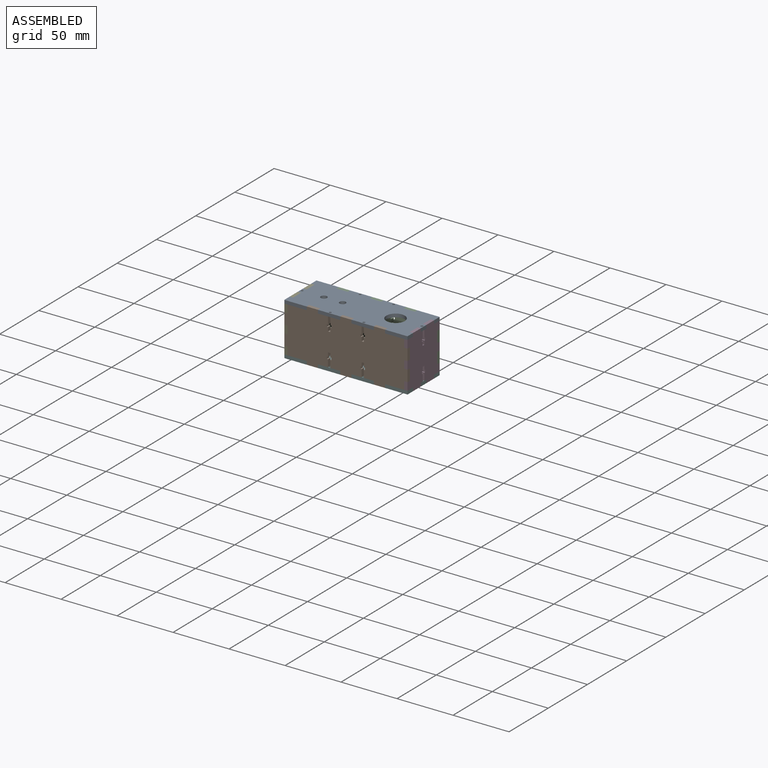
[diagram: assembled view]
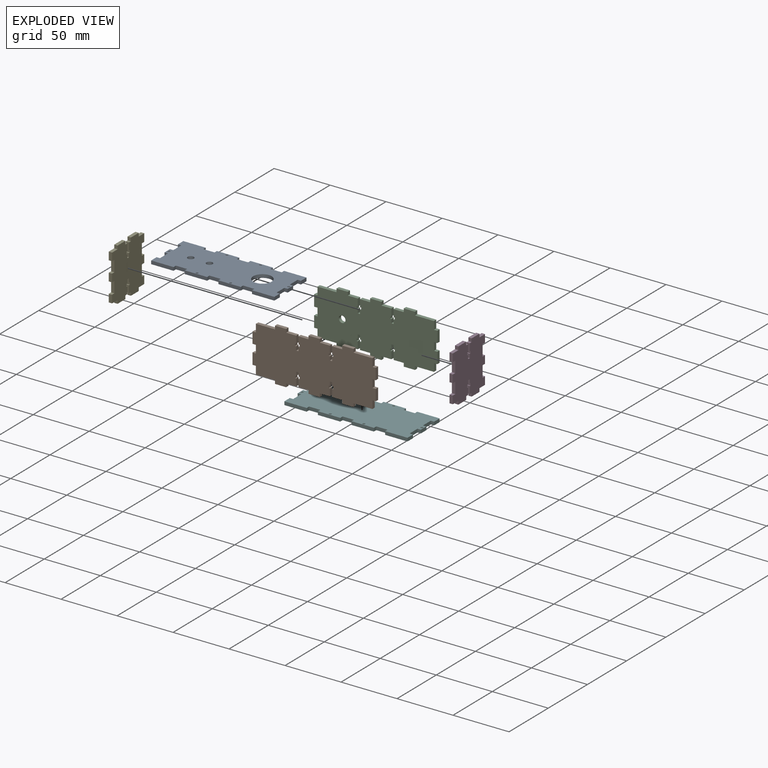
[diagram: exploded view]
GUIDED TOUR — MATED ASSEMBLY (Onshape document 3651a048bc59176aa81b3ebb, AutoMate assembly 3651a048bc59176aa81b3ebb_c559f27a7d0cab50f7303dcc_c40b2b020a9e5492d442a738_default)

This assembly has 6 components, labeled P0..P5 below (a component is one placed occurrence of a part; the same part can appear more than once), held together by 5 mates. A mate is a constraint between two components; its type names the relative motion it leaves free:
  FASTENED — locks the two components together rigidly (no relative motion).
Axis/direction vectors are unit vectors and 'through' points are millimeter coordinates, both in the assembly's world frame.

MATES
  1. FASTENED "Fastened 5": P4 <-> P0, direction (0.000, -1.000, 0.000) through (-55.14, -27.42, 76.21) mm
  2. FASTENED "Fastened 3": P1 <-> P5, direction (1.000, 0.000, 0.000) through (33.36, -32.92, 32.21) mm
  3. FASTENED "Fastened 1": P5 <-> P5, direction (-1.000, 0.000, 0.000) through (33.36, 5.08, 32.21) mm
  4. FASTENED "Fastened 2": P0 <-> P2, direction (-1.000, 0.000, 0.000) through (33.36, 5.08, 76.21) mm
  5. FASTENED "Fastened 4": P3 <-> P0, direction (0.000, 1.000, 0.000) through (51.86, -17.42, 76.21) mm

ASSEMBLY ORDER
  1. P2 — the base component [order verified]
  2. P0 [order verified]
  3. P1 [order verified]
  4. P4 [order verified]
  5. P3 [order verified]
  6. P5 [order verified]
Order-tag legend:
  [order verified] — this step's position reverses a verified removal order: the component was checked to insert without passing through the ones already placed.

Of the 6 components, 6 carry the full construction recipe — the FeatureScript program that regenerates the part's solid from scratch; the rest are supplied as boundary geometry only.
Each toured component is shown spotlighted twice — in the assembled view, then in the exploded view, where a leader line traces a displaced component back to its assembled socket (saturated green if recipe-attached, orange if geometry-only; every other component desaturated gray) — followed by its recipe or geometry summary and the mates that hold it.
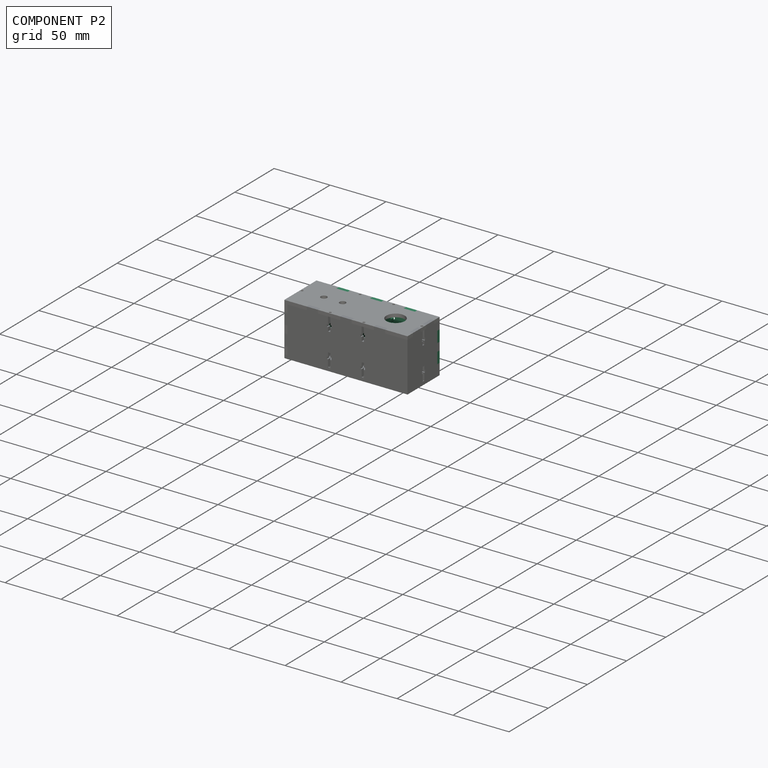
[diagram: component P2 — assembled]
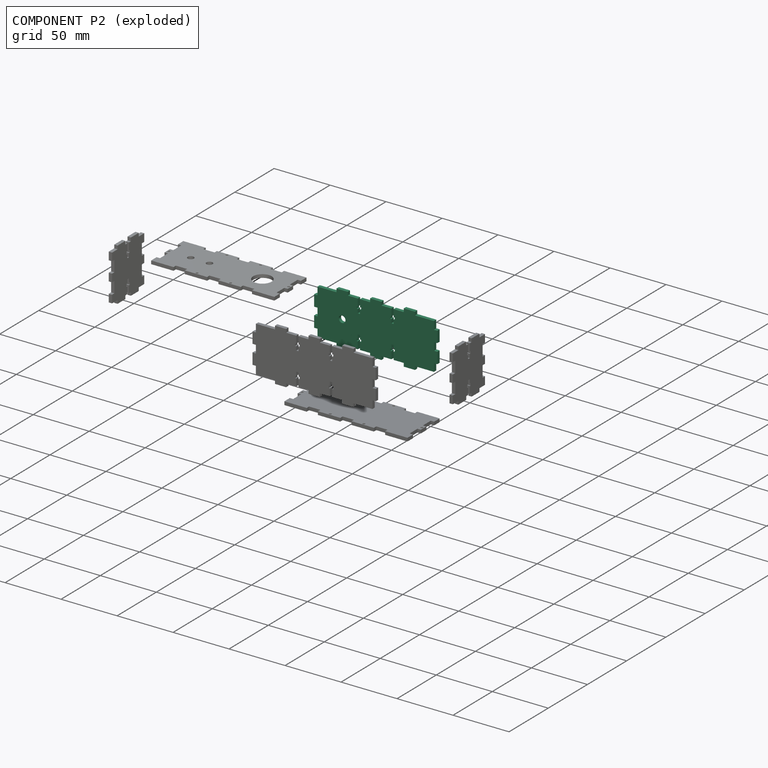
[diagram: component P2 — exploded]
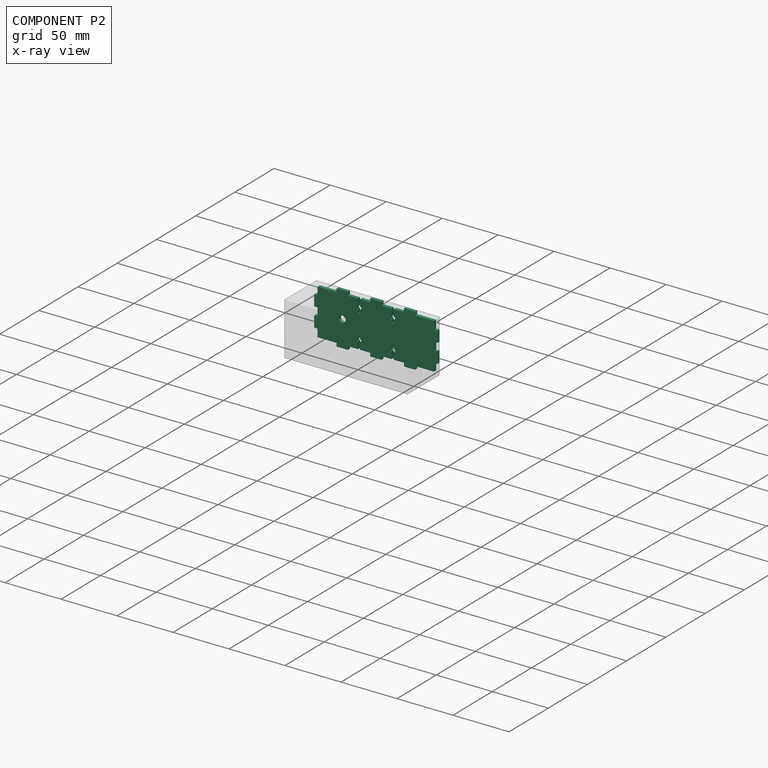
[diagram: component P2 — x-ray view]
COMPONENT P2 — recipe-attached (CADFS 00230035, mesh-verified: the recipe's output STEP matches this component's geometry to below the mesh-comparison resolution (tessellation chordal tolerance ~0.179 mm)).
Held by: FASTENED mate "Fastened 2" to P0.
Construction recipe (FeatureScript — the CAD program that rebuilds this solid; sketch coordinates are in the units given by the * unit suffixes, e.g. mm):

FeatureScript 1511;
import(path : "onshape/std/geometry.fs", version : "1511.0");
import(path : "onshape/std/common.fs", version : "1511.0");
const mm = millimeter;
const VERTEX = EntityType.VERTEX;
const EDGE = EntityType.EDGE;
const FACE = EntityType.FACE;
const BODY = EntityType.BODY;
function v(x, y){return vector(x, y);}
function OD(order){return orderDisambiguation(order);}
function OSD(set){return originalSetDisambiguation(set);}
function TD(topology){return topologyDisambiguation(topology);}
function TDD(query){return trueDependencyDisambiguation(query);}
function sQuery(a, b, c) {return sketchEntityQuery(a, b, c);}

annotation { "Feature Type Name" : "Feature", "Feature Type Description" : "" }
export const myFeature = defineFeature(function(context is Context, id is Id, definition is map)
    precondition{}
    {
        {
            var Q0;
            Q0=qCreatedBy(makeId("Front.planeOp"),FACE);
            var sketch = newSketch(context, id + "F0", { "sketchPlane" : qUnion([Q0])});
            skLineSegment(sketch, "E0", {"start": v(-56.01, 8.9) * mm, "end": v(-47.01, 8.9) * mm});
            skLineSegment(sketch, "E1", {"start": v(-47.01, 8.9) * mm, "end": v(-47.01, 2.4) * mm});
            skLineSegment(sketch, "E2", {"start": v(-47.01, 2.4) * mm, "end": v(-48.01, 2.4) * mm});
            skLineSegment(sketch, "E3", {"start": v(-48.01, 2.4) * mm, "end": v(-48.01, 0.4) * mm});
            skLineSegment(sketch, "E4", {"start": v(-48.01, 0.4) * mm, "end": v(-47.01, 0.4) * mm});
            skLineSegment(sketch, "E5", {"start": v(-47.01, 0.4) * mm, "end": v(-47.01, -3.1) * mm});
            skLineSegment(sketch, "E6", {"start": v(-47.01, -3.1) * mm, "end": v(-45.01, -3.1) * mm});
            skLineSegment(sketch, "E7", {"start": v(-45.01, -3.1) * mm, "end": v(-45.01, 0.4) * mm});
            skLineSegment(sketch, "E8", {"start": v(-45.01, 0.4) * mm, "end": v(-44.01, 0.4) * mm});
            skLineSegment(sketch, "E9", {"start": v(-44.01, 0.4) * mm, "end": v(-44.01, 2.4) * mm});
            skLineSegment(sketch, "E10", {"start": v(-44.01, 2.4) * mm, "end": v(-45.01, 2.4) * mm});
            skLineSegment(sketch, "E11", {"start": v(-45.01, 2.4) * mm, "end": v(-45.01, 8.9) * mm});
            skLineSegment(sketch, "E12", {"start": v(-45.01, 8.9) * mm, "end": v(-36.01, 8.9) * mm});
            skLineSegment(sketch, "E13", {"start": v(-36.01, 11.9) * mm, "end": v(-36.01, 8.9) * mm});
            skLineSegment(sketch, "E14", {"start": v(-36.01, 11.9) * mm, "end": v(-31.01, 11.9) * mm});
            skLineSegment(sketch, "E15", {"start": v(-56.01, 8.9) * mm, "end": v(-56.01, 11.9) * mm});
            skLineSegment(sketch, "E16", {"start": v(-56.01, 11.9) * mm, "end": v(-66.01, 11.9) * mm});
            skLineSegment(sketch, "E17", {"start": v(-66.01, 11.9) * mm, "end": v(-66.01, 8.9) * mm});
            skLineSegment(sketch, "E18", {"start": v(-66.01, 8.9) * mm, "end": v(-83.01, 8.9) * mm});
            skLineSegment(sketch, "E19", {"start": v(-83.01, 8.9) * mm, "end": v(-83.01, 1.9) * mm});
            skLineSegment(sketch, "E20", {"start": v(-83.01, 1.9) * mm, "end": v(-86.01, 1.9) * mm});
            skLineSegment(sketch, "E21", {"start": v(-86.01, 1.9) * mm, "end": v(-86.01, -8.1) * mm});
            skLineSegment(sketch, "E22", {"start": v(-86.01, -8.1) * mm, "end": v(-83.01, -8.1) * mm});
            skLineSegment(sketch, "E23", {"start": v(-83.01, -8.1) * mm, "end": v(-83.01, -11.6) * mm});
            skLineSegment(sketch, "E24", {"start": v(-83.01, -11.6) * mm, "end": v(-31.01, -11.6) * mm, "construction": true});
            skLineSegment(sketch, "E25.MirrorCS", {"start": v(-45.01, -23.6) * mm, "end": v(-44.01, -23.6) * mm});
            skLineSegment(sketch, "E26.MirrorCS", {"start": v(-44.01, -23.6) * mm, "end": v(-44.01, -25.6) * mm});
            skLineSegment(sketch, "E27.MirrorCS", {"start": v(-44.01, -25.6) * mm, "end": v(-45.01, -25.6) * mm});
            skLineSegment(sketch, "E28.MirrorCS", {"start": v(-47.01, -20.1) * mm, "end": v(-45.01, -20.1) * mm});
            skLineSegment(sketch, "E29.MirrorCS", {"start": v(-48.01, -23.6) * mm, "end": v(-47.01, -23.6) * mm});
            skLineSegment(sketch, "E30.MirrorCS", {"start": v(-47.01, -25.6) * mm, "end": v(-48.01, -25.6) * mm});
            skLineSegment(sketch, "E31.MirrorCS", {"start": v(-48.01, -25.6) * mm, "end": v(-48.01, -23.6) * mm});
            skLineSegment(sketch, "E32.MirrorCS", {"start": v(-86.01, -15.1) * mm, "end": v(-83.01, -15.1) * mm});
            skLineSegment(sketch, "E33.MirrorCS", {"start": v(-83.01, -25.1) * mm, "end": v(-86.01, -25.1) * mm});
            skLineSegment(sketch, "E34.MirrorCS", {"start": v(-47.01, -23.6) * mm, "end": v(-47.01, -20.1) * mm});
            skLineSegment(sketch, "E35.MirrorCS", {"start": v(-45.01, -20.1) * mm, "end": v(-45.01, -23.6) * mm});
            skLineSegment(sketch, "E36.MirrorCS", {"start": v(-56.01, -35.1) * mm, "end": v(-66.01, -35.1) * mm});
            skLineSegment(sketch, "E37.MirrorCS", {"start": v(-66.01, -32.1) * mm, "end": v(-83.01, -32.1) * mm});
            skLineSegment(sketch, "E38.MirrorCS", {"start": v(-47.01, -32.1) * mm, "end": v(-47.01, -25.6) * mm});
            skLineSegment(sketch, "E39.MirrorCS", {"start": v(-56.01, -32.1) * mm, "end": v(-47.01, -32.1) * mm});
            skLineSegment(sketch, "E40.MirrorCS", {"start": v(-56.01, -32.1) * mm, "end": v(-56.01, -35.1) * mm});
            skLineSegment(sketch, "E41.MirrorCS", {"start": v(-36.01, -35.1) * mm, "end": v(-31.01, -35.1) * mm});
            skLineSegment(sketch, "E42.MirrorCS", {"start": v(-36.01, -35.1) * mm, "end": v(-36.01, -32.1) * mm});
            skLineSegment(sketch, "E43.MirrorCS", {"start": v(-66.01, -35.1) * mm, "end": v(-66.01, -32.1) * mm});
            skLineSegment(sketch, "E44.MirrorCS", {"start": v(-83.01, -32.1) * mm, "end": v(-83.01, -25.1) * mm});
            skLineSegment(sketch, "E45.MirrorCS", {"start": v(-83.01, -15.1) * mm, "end": v(-83.01, -11.6) * mm});
            skLineSegment(sketch, "E46.MirrorCS", {"start": v(-45.01, -32.1) * mm, "end": v(-36.01, -32.1) * mm});
            skLineSegment(sketch, "E47.MirrorCS", {"start": v(-45.01, -25.6) * mm, "end": v(-45.01, -32.1) * mm});
            skLineSegment(sketch, "E48.MirrorCS", {"start": v(-86.01, -25.1) * mm, "end": v(-86.01, -15.1) * mm});
            skLineSegment(sketch, "E49", {"start": v(-31.01, 11.9) * mm, "end": v(-31.01, -35.1) * mm, "construction": true});
            skLineSegment(sketch, "E50.MirrorCS", {"start": v(-15.01, 2.4) * mm, "end": v(-14.01, 2.4) * mm});
            skLineSegment(sketch, "E51.MirrorCS", {"start": v(-17.01, 0.4) * mm, "end": v(-18.01, 0.4) * mm});
            skLineSegment(sketch, "E52.MirrorCS", {"start": v(-18.01, -25.6) * mm, "end": v(-17.01, -25.6) * mm});
            skLineSegment(sketch, "E53.MirrorCS", {"start": v(-14.01, -23.6) * mm, "end": v(-15.01, -23.6) * mm});
            skLineSegment(sketch, "E54.MirrorCS", {"start": v(-18.01, -23.6) * mm, "end": v(-18.01, -25.6) * mm});
            skLineSegment(sketch, "E55.MirrorCS", {"start": v(-14.01, 2.4) * mm, "end": v(-14.01, 0.4) * mm});
            skLineSegment(sketch, "E56.MirrorCS", {"start": v(-14.01, 0.4) * mm, "end": v(-15.01, 0.4) * mm});
            skLineSegment(sketch, "E57.MirrorCS", {"start": v(-15.01, -3.1) * mm, "end": v(-17.01, -3.1) * mm});
            skLineSegment(sketch, "E58.MirrorCS", {"start": v(-18.01, 0.4) * mm, "end": v(-18.01, 2.4) * mm});
            skLineSegment(sketch, "E59.MirrorCS", {"start": v(-18.01, 2.4) * mm, "end": v(-17.01, 2.4) * mm});
            skLineSegment(sketch, "E60.MirrorCS", {"start": v(-15.01, -20.1) * mm, "end": v(-17.01, -20.1) * mm});
            skLineSegment(sketch, "E61.MirrorCS", {"start": v(-15.01, -25.6) * mm, "end": v(-14.01, -25.6) * mm});
            skLineSegment(sketch, "E62.MirrorCS", {"start": v(-14.01, -25.6) * mm, "end": v(-14.01, -23.6) * mm});
            skLineSegment(sketch, "E63.MirrorCS", {"start": v(-17.01, -23.6) * mm, "end": v(-18.01, -23.6) * mm});
            skLineSegment(sketch, "E64.MirrorCS", {"start": v(-15.01, 0.4) * mm, "end": v(-15.01, -3.1) * mm});
            skLineSegment(sketch, "E65.MirrorCS", {"start": v(-15.01, -23.6) * mm, "end": v(-15.01, -20.1) * mm});
            skLineSegment(sketch, "E66.MirrorCS", {"start": v(-26.01, -35.1) * mm, "end": v(-26.01, -32.1) * mm});
            skLineSegment(sketch, "E67.MirrorCS", {"start": v(20.99, 8.9) * mm, "end": v(20.99, 1.9) * mm});
            skLineSegment(sketch, "E68.MirrorCS", {"start": v(-17.01, -20.1) * mm, "end": v(-17.01, -23.6) * mm});
            skLineSegment(sketch, "E69.MirrorCS", {"start": v(-26.01, 11.9) * mm, "end": v(-26.01, 8.9) * mm});
            skLineSegment(sketch, "E70.MirrorCS", {"start": v(-26.01, 11.9) * mm, "end": v(-31.01, 11.9) * mm});
            skLineSegment(sketch, "E71.MirrorCS", {"start": v(-6.01, 8.9) * mm, "end": v(-6.01, 11.9) * mm});
            skLineSegment(sketch, "E72.MirrorCS", {"start": v(-6.01, 8.9) * mm, "end": v(-15.01, 8.9) * mm});
            skLineSegment(sketch, "E73.MirrorCS", {"start": v(-15.01, 8.9) * mm, "end": v(-15.01, 2.4) * mm});
            skLineSegment(sketch, "E74.MirrorCS", {"start": v(-17.01, -3.1) * mm, "end": v(-17.01, 0.4) * mm});
            skLineSegment(sketch, "E75.MirrorCS", {"start": v(-17.01, 2.4) * mm, "end": v(-17.01, 8.9) * mm});
            skLineSegment(sketch, "E76.MirrorCS", {"start": v(3.99, -35.1) * mm, "end": v(3.99, -32.1) * mm});
            skLineSegment(sketch, "E77.MirrorCS", {"start": v(-17.01, 8.9) * mm, "end": v(-26.01, 8.9) * mm});
            skLineSegment(sketch, "E78.MirrorCS", {"start": v(-6.01, -32.1) * mm, "end": v(-15.01, -32.1) * mm});
            skLineSegment(sketch, "E79.MirrorCS", {"start": v(20.99, -8.1) * mm, "end": v(20.99, -11.6) * mm});
            skLineSegment(sketch, "E80.MirrorCS", {"start": v(20.99, 1.9) * mm, "end": v(23.99, 1.9) * mm});
            skLineSegment(sketch, "E81.MirrorCS", {"start": v(20.99, -15.1) * mm, "end": v(20.99, -11.6) * mm});
            skLineSegment(sketch, "E82.MirrorCS", {"start": v(20.99, -32.1) * mm, "end": v(20.99, -25.1) * mm});
            skLineSegment(sketch, "E83.MirrorCS", {"start": v(-6.01, -32.1) * mm, "end": v(-6.01, -35.1) * mm});
            skLineSegment(sketch, "E84.MirrorCS", {"start": v(20.99, -11.6) * mm, "end": v(-31.01, -11.6) * mm, "construction": true});
            skLineSegment(sketch, "E85.MirrorCS", {"start": v(23.99, 1.9) * mm, "end": v(23.99, -8.1) * mm});
            skLineSegment(sketch, "E86.MirrorCS", {"start": v(-17.01, -32.1) * mm, "end": v(-26.01, -32.1) * mm});
            skLineSegment(sketch, "E87.MirrorCS", {"start": v(20.99, -25.1) * mm, "end": v(23.99, -25.1) * mm});
            skLineSegment(sketch, "E88.MirrorCS", {"start": v(-15.01, -32.1) * mm, "end": v(-15.01, -25.6) * mm});
            skLineSegment(sketch, "E89.MirrorCS", {"start": v(-17.01, -25.6) * mm, "end": v(-17.01, -32.1) * mm});
            skLineSegment(sketch, "E90.MirrorCS", {"start": v(23.99, -8.1) * mm, "end": v(20.99, -8.1) * mm});
            skLineSegment(sketch, "E91.MirrorCS", {"start": v(-26.01, -35.1) * mm, "end": v(-31.01, -35.1) * mm});
            skLineSegment(sketch, "E92.MirrorCS", {"start": v(23.99, -15.1) * mm, "end": v(20.99, -15.1) * mm});
            skLineSegment(sketch, "E93.MirrorCS", {"start": v(23.99, -25.1) * mm, "end": v(23.99, -15.1) * mm});
            skLineSegment(sketch, "E94.MirrorCS", {"start": v(-6.01, -35.1) * mm, "end": v(3.99, -35.1) * mm});
            skLineSegment(sketch, "E95.MirrorCS", {"start": v(-6.01, 11.9) * mm, "end": v(3.99, 11.9) * mm});
            skLineSegment(sketch, "E96.MirrorCS", {"start": v(3.99, 8.9) * mm, "end": v(20.99, 8.9) * mm});
            skLineSegment(sketch, "E97.MirrorCS", {"start": v(3.99, 11.9) * mm, "end": v(3.99, 8.9) * mm});
            skLineSegment(sketch, "E98.MirrorCS", {"start": v(3.99, -32.1) * mm, "end": v(20.99, -32.1) * mm});
            skLineSegment(sketch, "E99", {"start": v(-61.01, 11.9) * mm, "end": v(-61.01, -35.1) * mm, "construction": true});
            skCircle(sketch, "E100", {"center": v(-61.01, -11.6) * mm, "radius": 3 * mm});
            skSolve(sketch);
        }
        {
            var Q0;
            Q0=makeQuery(id+"F0.imprint","IMPRINT",FACE,{"disambiguationData":[TD([[makeQuery(id+"F0.imprint","IMPRINT",EDGE,{"derivedFrom":sQuery(id+"F0.wireOp",EDGE,"E0")}),-1.0]])]});
            extrude(context, id + "F1", {"entities" : qUnion([Q0]), "depth" : 3 * mm});
        }
    });
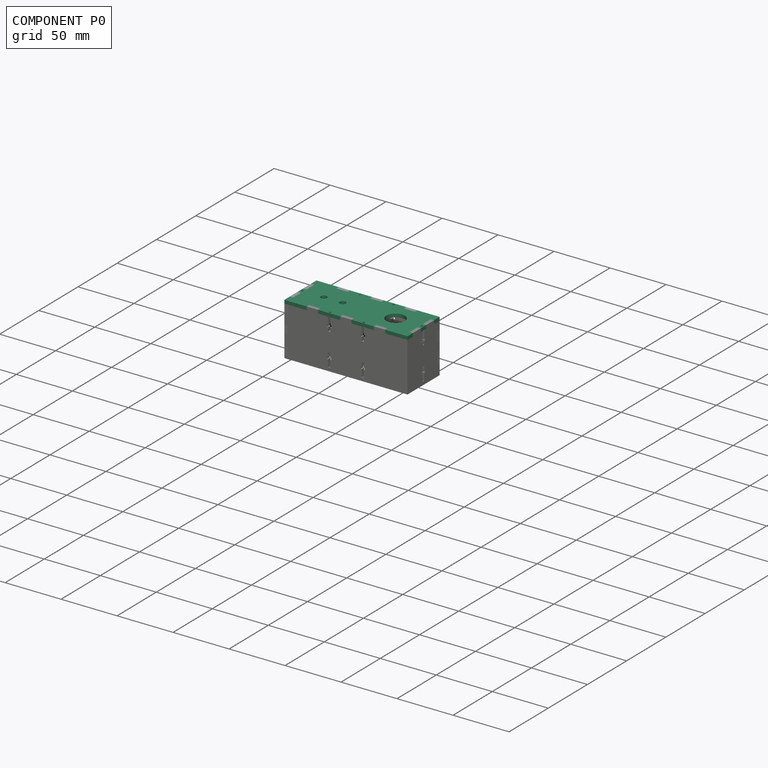
[diagram: component P0 — assembled]
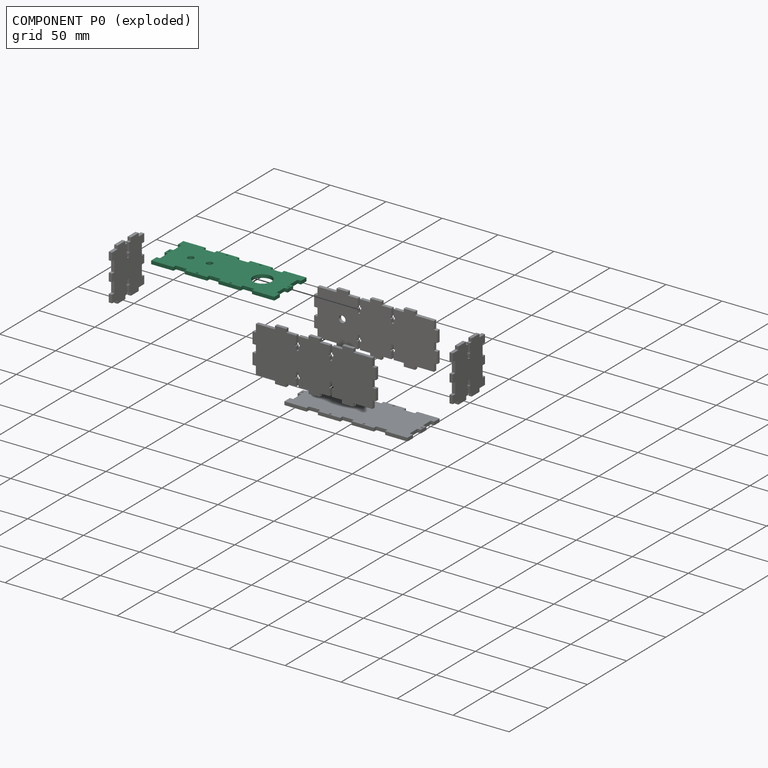
[diagram: component P0 — exploded]
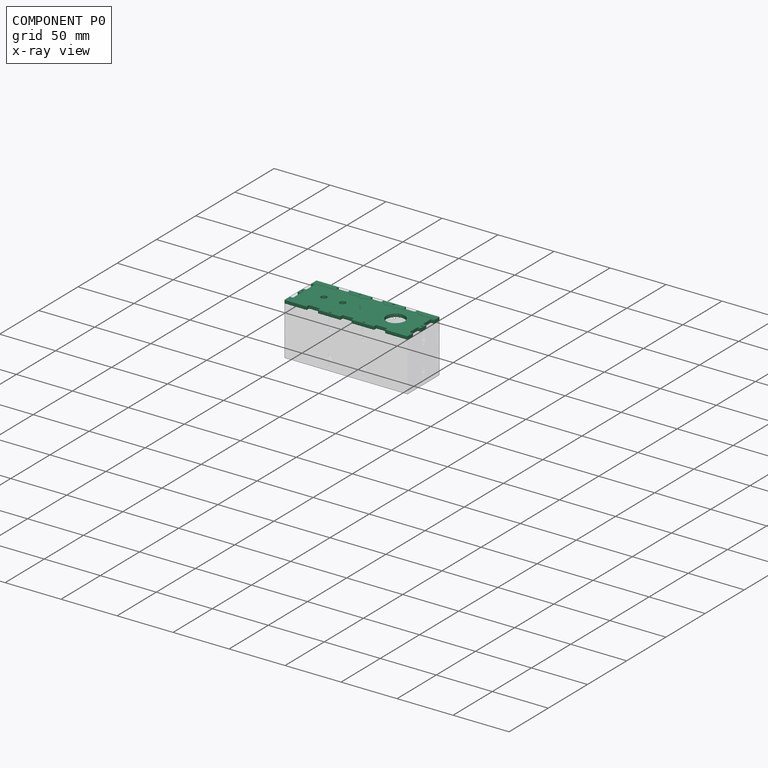
[diagram: component P0 — x-ray view]
COMPONENT P0 — recipe-attached (CADFS 00230037, mesh-verified: the recipe's output STEP matches this component's geometry to below the mesh-comparison resolution (tessellation chordal tolerance ~0.176 mm)).
Held by: FASTENED mate "Fastened 5" to P4; FASTENED mate "Fastened 2" to P2; FASTENED mate "Fastened 4" to P3.
Construction recipe (FeatureScript — the CAD program that rebuilds this solid; sketch coordinates are in the units given by the * unit suffixes, e.g. mm):

FeatureScript 1511;
import(path : "onshape/std/geometry.fs", version : "1511.0");
import(path : "onshape/std/common.fs", version : "1511.0");
const mm = millimeter;
const VERTEX = EntityType.VERTEX;
const EDGE = EntityType.EDGE;
const FACE = EntityType.FACE;
const BODY = EntityType.BODY;
function v(x, y){return vector(x, y);}
function OD(order){return orderDisambiguation(order);}
function OSD(set){return originalSetDisambiguation(set);}
function TD(topology){return topologyDisambiguation(topology);}
function TDD(query){return trueDependencyDisambiguation(query);}
function sQuery(a, b, c) {return sketchEntityQuery(a, b, c);}

annotation { "Feature Type Name" : "Feature", "Feature Type Description" : "" }
export const myFeature = defineFeature(function(context is Context, id is Id, definition is map)
    precondition{}
    {
        {
            var Q0;
            Q0=qCreatedBy(makeId("Top.planeOp"),FACE);
            var sketch = newSketch(context, id + "F0", { "sketchPlane" : qUnion([Q0])});
            skLineSegment(sketch, "E0", {"start": v(-55, 21.1) * mm, "end": v(-55, 14.1) * mm});
            skLineSegment(sketch, "E1", {"start": v(-55, 14.1) * mm, "end": v(-52, 14.1) * mm});
            skLineSegment(sketch, "E2", {"start": v(-52, 14.1) * mm, "end": v(-52, 4.1) * mm});
            skLineSegment(sketch, "E3", {"start": v(-52, 4.1) * mm, "end": v(-55, 4.1) * mm});
            skLineSegment(sketch, "E4", {"start": v(-55, 4.1) * mm, "end": v(-55, 0.6) * mm});
            skLineSegment(sketch, "E5", {"start": v(-55, 21.1) * mm, "end": v(-35, 21.1) * mm});
            skLineSegment(sketch, "E6", {"start": v(-35, 21.1) * mm, "end": v(-35, 18.1) * mm});
            skLineSegment(sketch, "E7", {"start": v(-35, 18.1) * mm, "end": v(-25, 18.1) * mm});
            skLineSegment(sketch, "E8", {"start": v(-25, 18.1) * mm, "end": v(-25, 21.1) * mm});
            skLineSegment(sketch, "E9", {"start": v(-25, 21.1) * mm, "end": v(-5, 21.1) * mm});
            skLineSegment(sketch, "E10", {"start": v(-5, 21.1) * mm, "end": v(-5, 18.1) * mm});
            skLineSegment(sketch, "E11", {"start": v(-5, 18.1) * mm, "end": v(0, 18.1) * mm});
            skLineSegment(sketch, "E12", {"start": v(-55, 0.6) * mm, "end": v(0, 0.6) * mm, "construction": true});
            skLineSegment(sketch, "E13.MirrorCS", {"start": v(-55, -12.9) * mm, "end": v(-52, -12.9) * mm});
            skLineSegment(sketch, "E14.MirrorCS", {"start": v(-25, -16.9) * mm, "end": v(-25, -19.9) * mm});
            skLineSegment(sketch, "E15.MirrorCS", {"start": v(-52, -2.9) * mm, "end": v(-55, -2.9) * mm});
            skLineSegment(sketch, "E16.MirrorCS", {"start": v(-55, -2.9) * mm, "end": v(-55, 0.6) * mm});
            skLineSegment(sketch, "E17.MirrorCS", {"start": v(-35, -19.9) * mm, "end": v(-35, -16.9) * mm});
            skLineSegment(sketch, "E18.MirrorCS", {"start": v(-5, -19.9) * mm, "end": v(-5, -16.9) * mm});
            skLineSegment(sketch, "E19.MirrorCS", {"start": v(-55, -19.9) * mm, "end": v(-55, -12.9) * mm});
            skLineSegment(sketch, "E20.MirrorCS", {"start": v(-5, -16.9) * mm, "end": v(0, -16.9) * mm});
            skLineSegment(sketch, "E21.MirrorCS", {"start": v(-52, -12.9) * mm, "end": v(-52, -2.9) * mm});
            skLineSegment(sketch, "E22.MirrorCS", {"start": v(-25, -19.9) * mm, "end": v(-5, -19.9) * mm});
            skLineSegment(sketch, "E23.MirrorCS", {"start": v(-55, -19.9) * mm, "end": v(-35, -19.9) * mm});
            skLineSegment(sketch, "E24.MirrorCS", {"start": v(-35, -16.9) * mm, "end": v(-25, -16.9) * mm});
            skLineSegment(sketch, "E25", {"start": v(0, 18.1) * mm, "end": v(0, -16.9) * mm, "construction": true});
            skLineSegment(sketch, "E26.MirrorCS", {"start": v(55, -2.9) * mm, "end": v(55, 0.6) * mm});
            skLineSegment(sketch, "E27.MirrorCS", {"start": v(5, 21.1) * mm, "end": v(5, 18.1) * mm});
            skLineSegment(sketch, "E28.MirrorCS", {"start": v(25, 18.1) * mm, "end": v(25, 21.1) * mm});
            skLineSegment(sketch, "E29.MirrorCS", {"start": v(35, 21.1) * mm, "end": v(35, 18.1) * mm});
            skLineSegment(sketch, "E30.MirrorCS", {"start": v(55, 4.1) * mm, "end": v(55, 0.6) * mm});
            skLineSegment(sketch, "E31.MirrorCS", {"start": v(52, 4.1) * mm, "end": v(55, 4.1) * mm});
            skLineSegment(sketch, "E32.MirrorCS", {"start": v(55, 14.1) * mm, "end": v(52, 14.1) * mm});
            skLineSegment(sketch, "E33.MirrorCS", {"start": v(25, -16.9) * mm, "end": v(25, -19.9) * mm});
            skLineSegment(sketch, "E34.MirrorCS", {"start": v(52, -2.9) * mm, "end": v(55, -2.9) * mm});
            skLineSegment(sketch, "E35.MirrorCS", {"start": v(5, -19.9) * mm, "end": v(5, -16.9) * mm});
            skLineSegment(sketch, "E36.MirrorCS", {"start": v(55, -12.9) * mm, "end": v(52, -12.9) * mm});
            skLineSegment(sketch, "E37.MirrorCS", {"start": v(35, -19.9) * mm, "end": v(35, -16.9) * mm});
            skLineSegment(sketch, "E38.MirrorCS", {"start": v(5, -16.9) * mm, "end": v(0, -16.9) * mm});
            skLineSegment(sketch, "E39.MirrorCS", {"start": v(55, -19.9) * mm, "end": v(35, -19.9) * mm});
            skLineSegment(sketch, "E40.MirrorCS", {"start": v(25, -19.9) * mm, "end": v(5, -19.9) * mm});
            skLineSegment(sketch, "E41.MirrorCS", {"start": v(55, 0.6) * mm, "end": v(0, 0.6) * mm, "construction": true});
            skLineSegment(sketch, "E42.MirrorCS", {"start": v(5, 18.1) * mm, "end": v(0, 18.1) * mm});
            skLineSegment(sketch, "E43.MirrorCS", {"start": v(25, 21.1) * mm, "end": v(5, 21.1) * mm});
            skLineSegment(sketch, "E44.MirrorCS", {"start": v(35, 18.1) * mm, "end": v(25, 18.1) * mm});
            skLineSegment(sketch, "E45.MirrorCS", {"start": v(55, 21.1) * mm, "end": v(35, 21.1) * mm});
            skLineSegment(sketch, "E46.MirrorCS", {"start": v(52, 14.1) * mm, "end": v(52, 4.1) * mm});
            skLineSegment(sketch, "E47.MirrorCS", {"start": v(55, 21.1) * mm, "end": v(55, 14.1) * mm});
            skLineSegment(sketch, "E48.MirrorCS", {"start": v(55, -19.9) * mm, "end": v(55, -12.9) * mm});
            skLineSegment(sketch, "E49.MirrorCS", {"start": v(52, -12.9) * mm, "end": v(52, -2.9) * mm});
            skLineSegment(sketch, "E50.MirrorCS", {"start": v(35, -16.9) * mm, "end": v(25, -16.9) * mm});
            skCircle(sketch, "E51", {"center": v(-15, 19.6) * mm, "radius": 1 * mm});
            skPoint(sketch, "E51.centerSnap0", {"position": v(-15, 21.1) * mm});
            skCircle(sketch, "E52.MirrorC", {"center": v(-15, -18.4) * mm, "radius": 1 * mm});
            skCircle(sketch, "E53", {"center": v(-53.5, 0.6) * mm, "radius": 1 * mm});
            skCircle(sketch, "E54.MirrorC", {"center": v(15, 19.6) * mm, "radius": 1 * mm});
            skCircle(sketch, "E55.MirrorC", {"center": v(15, -18.4) * mm, "radius": 1 * mm});
            skCircle(sketch, "E56.MirrorC", {"center": v(53.5, 0.6) * mm, "radius": 1 * mm});
            skLineSegment(sketch, "E57", {"start": v(30, 18.1) * mm, "end": v(30, -16.9) * mm, "construction": true});
            skCircle(sketch, "E58", {"center": v(30, 0.6) * mm, "radius": 8.25 * mm});
            skLineSegment(sketch, "E59", {"start": v(-55, 0.6) * mm, "end": v(-52, 0.6) * mm, "construction": true});
            skLineSegment(sketch, "E60", {"start": v(-52, 0.6) * mm, "end": v(-34, 0.6) * mm, "construction": true});
            skCircle(sketch, "E61", {"center": v(-34, 0.6) * mm, "radius": 2.75 * mm});
            skLineSegment(sketch, "E62", {"start": v(-31.25, 0.6) * mm, "end": v(-17.25, 0.6) * mm, "construction": true});
            skCircle(sketch, "E63", {"center": v(-17.25, 0.6) * mm, "radius": 2.75 * mm});
            skSolve(sketch);
        }
        {
            var Q0;
            Q0=qSketchRegion(id+"F0",true);
            extrude(context, id + "F1", {"entities" : qUnion([Q0]), "depth" : 3 * mm});
        }
    });
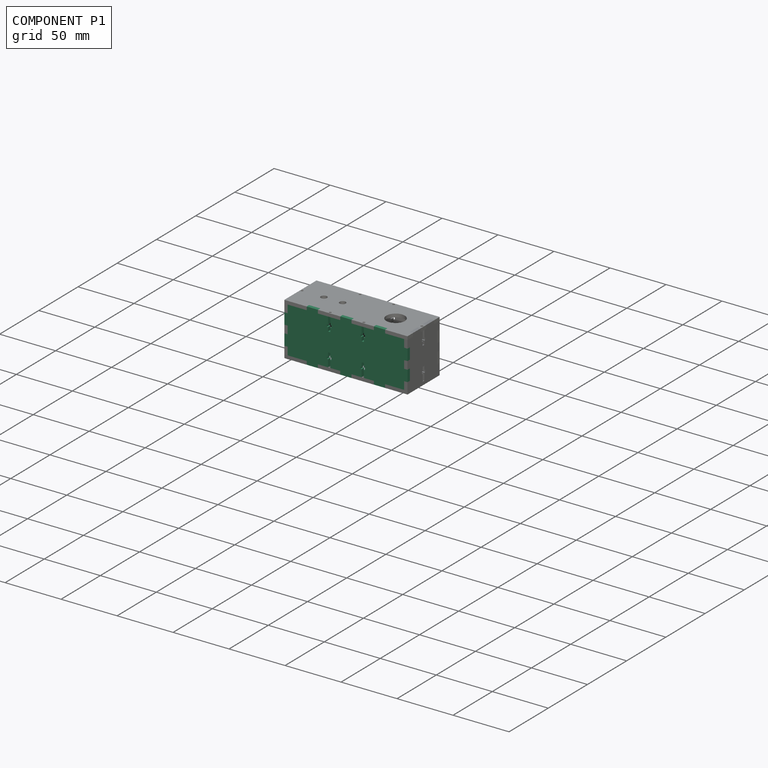
[diagram: component P1 — assembled]
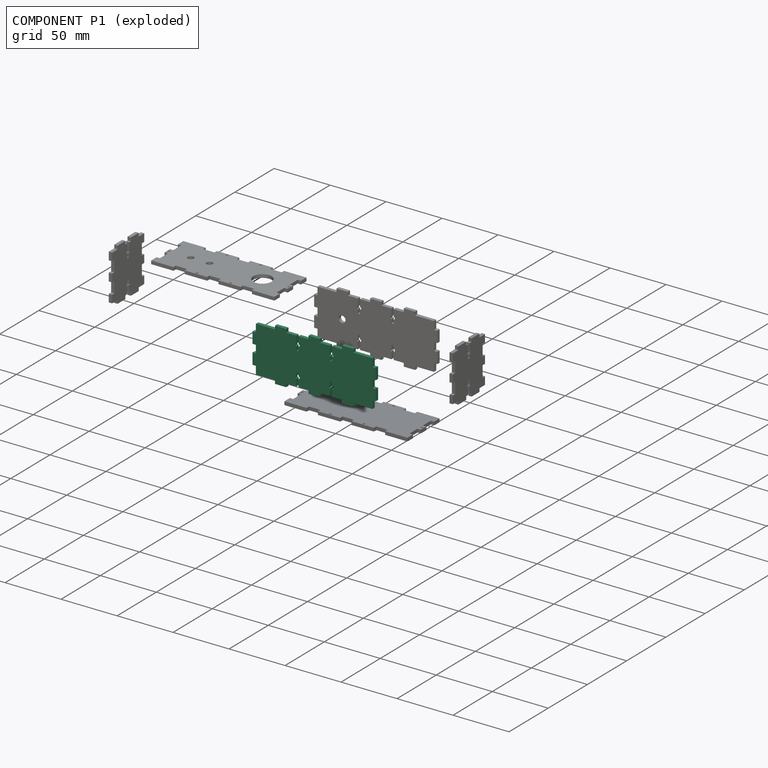
[diagram: component P1 — exploded]
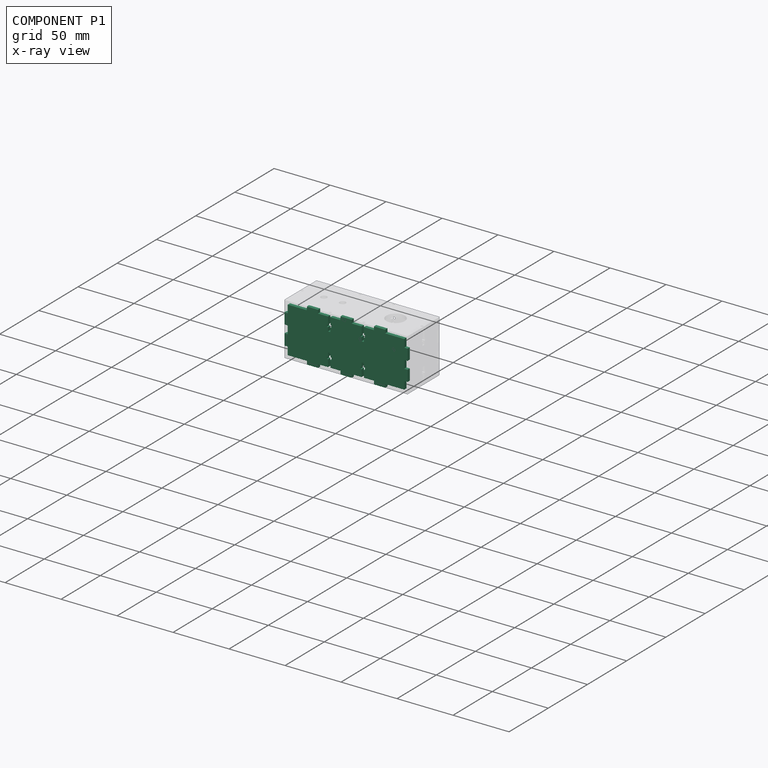
[diagram: component P1 — x-ray view]
COMPONENT P1 — recipe-attached (CADFS 00230038, mesh-verified: the recipe's output STEP matches this component's geometry to below the mesh-comparison resolution (tessellation chordal tolerance ~0.179 mm)).
Held by: FASTENED mate "Fastened 3" to P5.
Construction recipe (FeatureScript — the CAD program that rebuilds this solid; sketch coordinates are in the units given by the * unit suffixes, e.g. mm):

FeatureScript 1511;
import(path : "onshape/std/geometry.fs", version : "1511.0");
import(path : "onshape/std/common.fs", version : "1511.0");
const mm = millimeter;
const VERTEX = EntityType.VERTEX;
const EDGE = EntityType.EDGE;
const FACE = EntityType.FACE;
const BODY = EntityType.BODY;
function v(x, y){return vector(x, y);}
function OD(order){return orderDisambiguation(order);}
function OSD(set){return originalSetDisambiguation(set);}
function TD(topology){return topologyDisambiguation(topology);}
function TDD(query){return trueDependencyDisambiguation(query);}
function sQuery(a, b, c) {return sketchEntityQuery(a, b, c);}

annotation { "Feature Type Name" : "Feature", "Feature Type Description" : "" }
export const myFeature = defineFeature(function(context is Context, id is Id, definition is map)
    precondition{}
    {
        {
            var Q0;
            Q0=qCreatedBy(makeId("Front.planeOp"),FACE);
            var sketch = newSketch(context, id + "F0", { "sketchPlane" : qUnion([Q0])});
            skLineSegment(sketch, "E0", {"start": v(-56.01, 8.9) * mm, "end": v(-47.01, 8.9) * mm});
            skLineSegment(sketch, "E1", {"start": v(-47.01, 8.9) * mm, "end": v(-47.01, 2.4) * mm});
            skLineSegment(sketch, "E2", {"start": v(-47.01, 2.4) * mm, "end": v(-48.01, 2.4) * mm});
            skLineSegment(sketch, "E3", {"start": v(-48.01, 2.4) * mm, "end": v(-48.01, 0.4) * mm});
            skLineSegment(sketch, "E4", {"start": v(-48.01, 0.4) * mm, "end": v(-47.01, 0.4) * mm});
            skLineSegment(sketch, "E5", {"start": v(-47.01, 0.4) * mm, "end": v(-47.01, -3.1) * mm});
            skLineSegment(sketch, "E6", {"start": v(-47.01, -3.1) * mm, "end": v(-45.01, -3.1) * mm});
            skLineSegment(sketch, "E7", {"start": v(-45.01, -3.1) * mm, "end": v(-45.01, 0.4) * mm});
            skLineSegment(sketch, "E8", {"start": v(-45.01, 0.4) * mm, "end": v(-44.01, 0.4) * mm});
            skLineSegment(sketch, "E9", {"start": v(-44.01, 0.4) * mm, "end": v(-44.01, 2.4) * mm});
            skLineSegment(sketch, "E10", {"start": v(-44.01, 2.4) * mm, "end": v(-45.01, 2.4) * mm});
            skLineSegment(sketch, "E11", {"start": v(-45.01, 2.4) * mm, "end": v(-45.01, 8.9) * mm});
            skLineSegment(sketch, "E12", {"start": v(-45.01, 8.9) * mm, "end": v(-36.01, 8.9) * mm});
            skLineSegment(sketch, "E13", {"start": v(-36.01, 11.9) * mm, "end": v(-36.01, 8.9) * mm});
            skLineSegment(sketch, "E14", {"start": v(-36.01, 11.9) * mm, "end": v(-31.01, 11.9) * mm});
            skLineSegment(sketch, "E15", {"start": v(-56.01, 8.9) * mm, "end": v(-56.01, 11.9) * mm});
            skLineSegment(sketch, "E16", {"start": v(-56.01, 11.9) * mm, "end": v(-66.01, 11.9) * mm});
            skLineSegment(sketch, "E17", {"start": v(-66.01, 11.9) * mm, "end": v(-66.01, 8.9) * mm});
            skLineSegment(sketch, "E18", {"start": v(-66.01, 8.9) * mm, "end": v(-83.01, 8.9) * mm});
            skLineSegment(sketch, "E19", {"start": v(-83.01, 8.9) * mm, "end": v(-83.01, 1.9) * mm});
            skLineSegment(sketch, "E20", {"start": v(-83.01, 1.9) * mm, "end": v(-86.01, 1.9) * mm});
            skLineSegment(sketch, "E21", {"start": v(-86.01, 1.9) * mm, "end": v(-86.01, -8.1) * mm});
            skLineSegment(sketch, "E22", {"start": v(-86.01, -8.1) * mm, "end": v(-83.01, -8.1) * mm});
            skLineSegment(sketch, "E23", {"start": v(-83.01, -8.1) * mm, "end": v(-83.01, -11.6) * mm});
            skLineSegment(sketch, "E24", {"start": v(-83.01, -11.6) * mm, "end": v(-31.01, -11.6) * mm, "construction": true});
            skLineSegment(sketch, "E25.MirrorCS", {"start": v(-45.01, -23.6) * mm, "end": v(-44.01, -23.6) * mm});
            skLineSegment(sketch, "E26.MirrorCS", {"start": v(-44.01, -23.6) * mm, "end": v(-44.01, -25.6) * mm});
            skLineSegment(sketch, "E27.MirrorCS", {"start": v(-44.01, -25.6) * mm, "end": v(-45.01, -25.6) * mm});
            skLineSegment(sketch, "E28.MirrorCS", {"start": v(-47.01, -20.1) * mm, "end": v(-45.01, -20.1) * mm});
            skLineSegment(sketch, "E29.MirrorCS", {"start": v(-48.01, -23.6) * mm, "end": v(-47.01, -23.6) * mm});
            skLineSegment(sketch, "E30.MirrorCS", {"start": v(-47.01, -25.6) * mm, "end": v(-48.01, -25.6) * mm});
            skLineSegment(sketch, "E31.MirrorCS", {"start": v(-48.01, -25.6) * mm, "end": v(-48.01, -23.6) * mm});
            skLineSegment(sketch, "E32.MirrorCS", {"start": v(-86.01, -15.1) * mm, "end": v(-83.01, -15.1) * mm});
            skLineSegment(sketch, "E33.MirrorCS", {"start": v(-83.01, -25.1) * mm, "end": v(-86.01, -25.1) * mm});
            skLineSegment(sketch, "E34.MirrorCS", {"start": v(-47.01, -23.6) * mm, "end": v(-47.01, -20.1) * mm});
            skLineSegment(sketch, "E35.MirrorCS", {"start": v(-45.01, -20.1) * mm, "end": v(-45.01, -23.6) * mm});
            skLineSegment(sketch, "E36.MirrorCS", {"start": v(-56.01, -35.1) * mm, "end": v(-66.01, -35.1) * mm});
            skLineSegment(sketch, "E37.MirrorCS", {"start": v(-66.01, -32.1) * mm, "end": v(-83.01, -32.1) * mm});
            skLineSegment(sketch, "E38.MirrorCS", {"start": v(-47.01, -32.1) * mm, "end": v(-47.01, -25.6) * mm});
            skLineSegment(sketch, "E39.MirrorCS", {"start": v(-56.01, -32.1) * mm, "end": v(-47.01, -32.1) * mm});
            skLineSegment(sketch, "E40.MirrorCS", {"start": v(-56.01, -32.1) * mm, "end": v(-56.01, -35.1) * mm});
            skLineSegment(sketch, "E41.MirrorCS", {"start": v(-36.01, -35.1) * mm, "end": v(-31.01, -35.1) * mm});
            skLineSegment(sketch, "E42.MirrorCS", {"start": v(-36.01, -35.1) * mm, "end": v(-36.01, -32.1) * mm});
            skLineSegment(sketch, "E43.MirrorCS", {"start": v(-66.01, -35.1) * mm, "end": v(-66.01, -32.1) * mm});
            skLineSegment(sketch, "E44.MirrorCS", {"start": v(-83.01, -32.1) * mm, "end": v(-83.01, -25.1) * mm});
            skLineSegment(sketch, "E45.MirrorCS", {"start": v(-83.01, -15.1) * mm, "end": v(-83.01, -11.6) * mm});
            skLineSegment(sketch, "E46.MirrorCS", {"start": v(-45.01, -32.1) * mm, "end": v(-36.01, -32.1) * mm});
            skLineSegment(sketch, "E47.MirrorCS", {"start": v(-45.01, -25.6) * mm, "end": v(-45.01, -32.1) * mm});
            skLineSegment(sketch, "E48.MirrorCS", {"start": v(-86.01, -25.1) * mm, "end": v(-86.01, -15.1) * mm});
            skLineSegment(sketch, "E49", {"start": v(-31.01, 11.9) * mm, "end": v(-31.01, -35.1) * mm, "construction": true});
            skLineSegment(sketch, "E50.MirrorCS", {"start": v(-15.01, 2.4) * mm, "end": v(-14.01, 2.4) * mm});
            skLineSegment(sketch, "E51.MirrorCS", {"start": v(-17.01, 0.4) * mm, "end": v(-18.01, 0.4) * mm});
            skLineSegment(sketch, "E52.MirrorCS", {"start": v(-18.01, -25.6) * mm, "end": v(-17.01, -25.6) * mm});
            skLineSegment(sketch, "E53.MirrorCS", {"start": v(-14.01, -23.6) * mm, "end": v(-15.01, -23.6) * mm});
            skLineSegment(sketch, "E54.MirrorCS", {"start": v(-18.01, -23.6) * mm, "end": v(-18.01, -25.6) * mm});
            skLineSegment(sketch, "E55.MirrorCS", {"start": v(-14.01, 2.4) * mm, "end": v(-14.01, 0.4) * mm});
            skLineSegment(sketch, "E56.MirrorCS", {"start": v(-14.01, 0.4) * mm, "end": v(-15.01, 0.4) * mm});
            skLineSegment(sketch, "E57.MirrorCS", {"start": v(-15.01, -3.1) * mm, "end": v(-17.01, -3.1) * mm});
            skLineSegment(sketch, "E58.MirrorCS", {"start": v(-18.01, 0.4) * mm, "end": v(-18.01, 2.4) * mm});
            skLineSegment(sketch, "E59.MirrorCS", {"start": v(-18.01, 2.4) * mm, "end": v(-17.01, 2.4) * mm});
            skLineSegment(sketch, "E60.MirrorCS", {"start": v(-15.01, -20.1) * mm, "end": v(-17.01, -20.1) * mm});
            skLineSegment(sketch, "E61.MirrorCS", {"start": v(-15.01, -25.6) * mm, "end": v(-14.01, -25.6) * mm});
            skLineSegment(sketch, "E62.MirrorCS", {"start": v(-14.01, -25.6) * mm, "end": v(-14.01, -23.6) * mm});
            skLineSegment(sketch, "E63.MirrorCS", {"start": v(-17.01, -23.6) * mm, "end": v(-18.01, -23.6) * mm});
            skLineSegment(sketch, "E64.MirrorCS", {"start": v(-15.01, 0.4) * mm, "end": v(-15.01, -3.1) * mm});
            skLineSegment(sketch, "E65.MirrorCS", {"start": v(-15.01, -23.6) * mm, "end": v(-15.01, -20.1) * mm});
            skLineSegment(sketch, "E66.MirrorCS", {"start": v(-26.01, -35.1) * mm, "end": v(-26.01, -32.1) * mm});
            skLineSegment(sketch, "E67.MirrorCS", {"start": v(20.99, 8.9) * mm, "end": v(20.99, 1.9) * mm});
            skLineSegment(sketch, "E68.MirrorCS", {"start": v(-17.01, -20.1) * mm, "end": v(-17.01, -23.6) * mm});
            skLineSegment(sketch, "E69.MirrorCS", {"start": v(-26.01, 11.9) * mm, "end": v(-26.01, 8.9) * mm});
            skLineSegment(sketch, "E70.MirrorCS", {"start": v(-26.01, 11.9) * mm, "end": v(-31.01, 11.9) * mm});
            skLineSegment(sketch, "E71.MirrorCS", {"start": v(-6.01, 8.9) * mm, "end": v(-6.01, 11.9) * mm});
            skLineSegment(sketch, "E72.MirrorCS", {"start": v(-6.01, 8.9) * mm, "end": v(-15.01, 8.9) * mm});
            skLineSegment(sketch, "E73.MirrorCS", {"start": v(-15.01, 8.9) * mm, "end": v(-15.01, 2.4) * mm});
            skLineSegment(sketch, "E74.MirrorCS", {"start": v(-17.01, -3.1) * mm, "end": v(-17.01, 0.4) * mm});
            skLineSegment(sketch, "E75.MirrorCS", {"start": v(-17.01, 2.4) * mm, "end": v(-17.01, 8.9) * mm});
            skLineSegment(sketch, "E76.MirrorCS", {"start": v(3.99, -35.1) * mm, "end": v(3.99, -32.1) * mm});
            skLineSegment(sketch, "E77.MirrorCS", {"start": v(-17.01, 8.9) * mm, "end": v(-26.01, 8.9) * mm});
            skLineSegment(sketch, "E78.MirrorCS", {"start": v(-6.01, -32.1) * mm, "end": v(-15.01, -32.1) * mm});
            skLineSegment(sketch, "E79.MirrorCS", {"start": v(20.99, -8.1) * mm, "end": v(20.99, -11.6) * mm});
            skLineSegment(sketch, "E80.MirrorCS", {"start": v(20.99, 1.9) * mm, "end": v(23.99, 1.9) * mm});
            skLineSegment(sketch, "E81.MirrorCS", {"start": v(20.99, -15.1) * mm, "end": v(20.99, -11.6) * mm});
            skLineSegment(sketch, "E82.MirrorCS", {"start": v(20.99, -32.1) * mm, "end": v(20.99, -25.1) * mm});
            skLineSegment(sketch, "E83.MirrorCS", {"start": v(-6.01, -32.1) * mm, "end": v(-6.01, -35.1) * mm});
            skLineSegment(sketch, "E84.MirrorCS", {"start": v(20.99, -11.6) * mm, "end": v(-31.01, -11.6) * mm, "construction": true});
            skLineSegment(sketch, "E85.MirrorCS", {"start": v(23.99, 1.9) * mm, "end": v(23.99, -8.1) * mm});
            skLineSegment(sketch, "E86.MirrorCS", {"start": v(-17.01, -32.1) * mm, "end": v(-26.01, -32.1) * mm});
            skLineSegment(sketch, "E87.MirrorCS", {"start": v(20.99, -25.1) * mm, "end": v(23.99, -25.1) * mm});
            skLineSegment(sketch, "E88.MirrorCS", {"start": v(-15.01, -32.1) * mm, "end": v(-15.01, -25.6) * mm});
            skLineSegment(sketch, "E89.MirrorCS", {"start": v(-17.01, -25.6) * mm, "end": v(-17.01, -32.1) * mm});
            skLineSegment(sketch, "E90.MirrorCS", {"start": v(23.99, -8.1) * mm, "end": v(20.99, -8.1) * mm});
            skLineSegment(sketch, "E91.MirrorCS", {"start": v(-26.01, -35.1) * mm, "end": v(-31.01, -35.1) * mm});
            skLineSegment(sketch, "E92.MirrorCS", {"start": v(23.99, -15.1) * mm, "end": v(20.99, -15.1) * mm});
            skLineSegment(sketch, "E93.MirrorCS", {"start": v(23.99, -25.1) * mm, "end": v(23.99, -15.1) * mm});
            skLineSegment(sketch, "E94.MirrorCS", {"start": v(-6.01, -35.1) * mm, "end": v(3.99, -35.1) * mm});
            skLineSegment(sketch, "E95.MirrorCS", {"start": v(-6.01, 11.9) * mm, "end": v(3.99, 11.9) * mm});
            skLineSegment(sketch, "E96.MirrorCS", {"start": v(3.99, 8.9) * mm, "end": v(20.99, 8.9) * mm});
            skLineSegment(sketch, "E97.MirrorCS", {"start": v(3.99, 11.9) * mm, "end": v(3.99, 8.9) * mm});
            skLineSegment(sketch, "E98.MirrorCS", {"start": v(3.99, -32.1) * mm, "end": v(20.99, -32.1) * mm});
            skLineSegment(sketch, "E99", {"start": v(-61.01, 11.9) * mm, "end": v(-61.01, -35.1) * mm, "construction": true});
            skSolve(sketch);
        }
        {
            var Q0;
            Q0=makeQuery(id+"F0.imprint","IMPRINT",FACE,{"disambiguationData":[TD([[makeQuery(id+"F0.imprint","IMPRINT",EDGE,{"derivedFrom":sQuery(id+"F0.wireOp",EDGE,"E0")}),-1.0]])]});
            extrude(context, id + "F1", {"entities" : qUnion([Q0]), "depth" : 3 * mm});
        }
    });
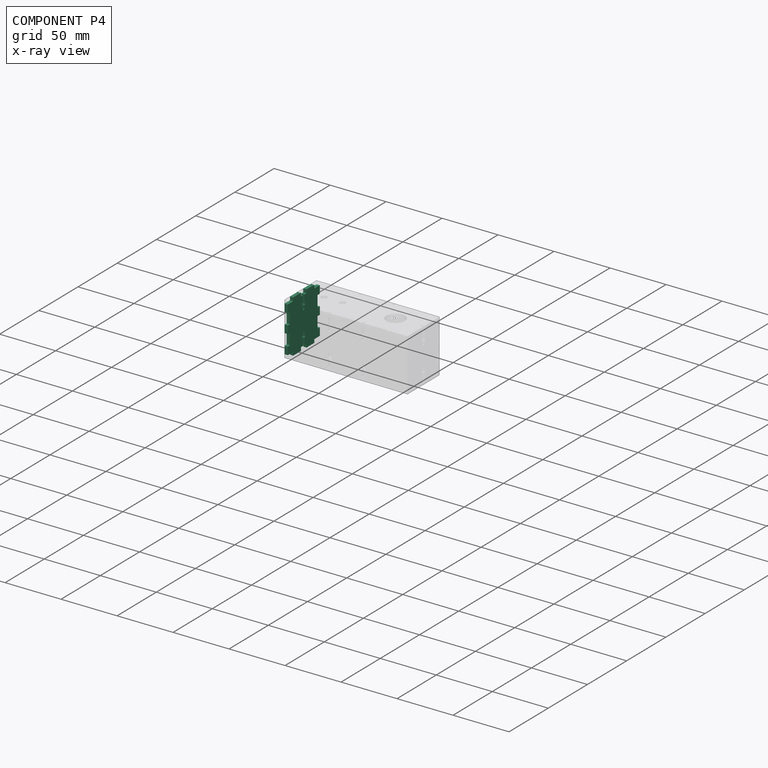
[diagram: component P4 — x-ray view]
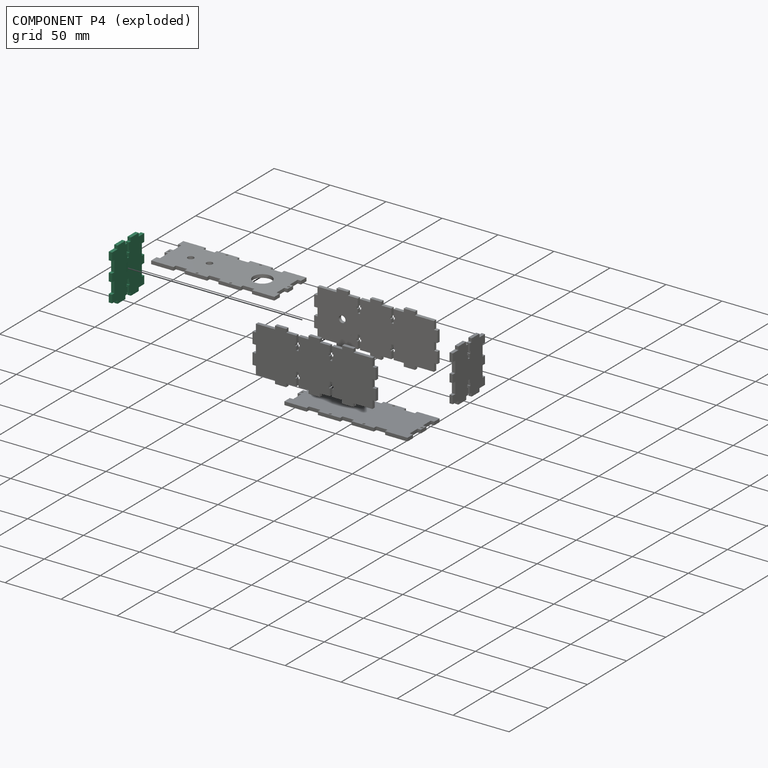
[diagram: component P4 — exploded]
COMPONENT P4 — same part as P3 (CADFS 00230034); its construction recipe is shown at P3.
Held by: FASTENED mate "Fastened 5" to P0.
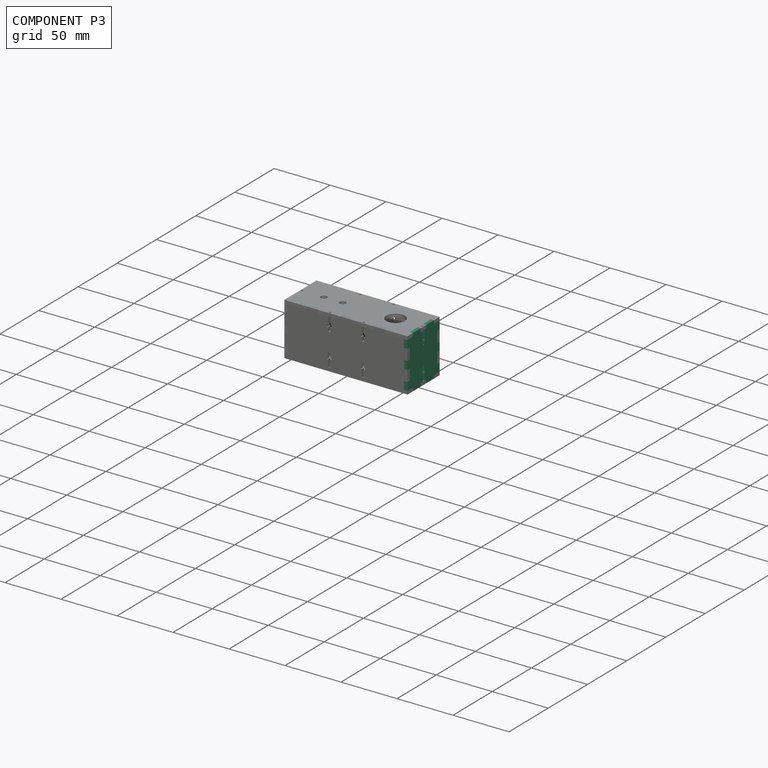
[diagram: component P3 — assembled]
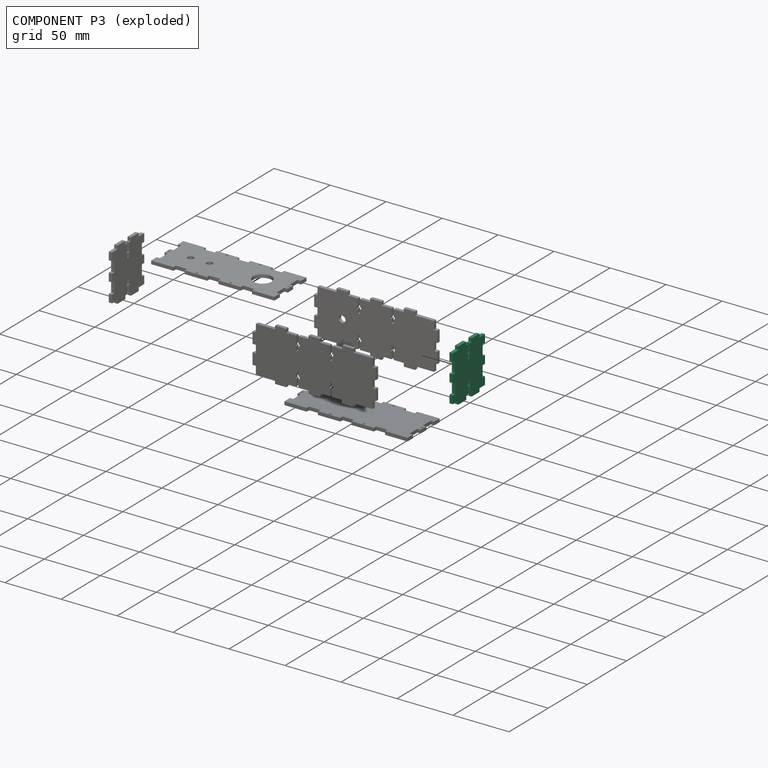
[diagram: component P3 — exploded]
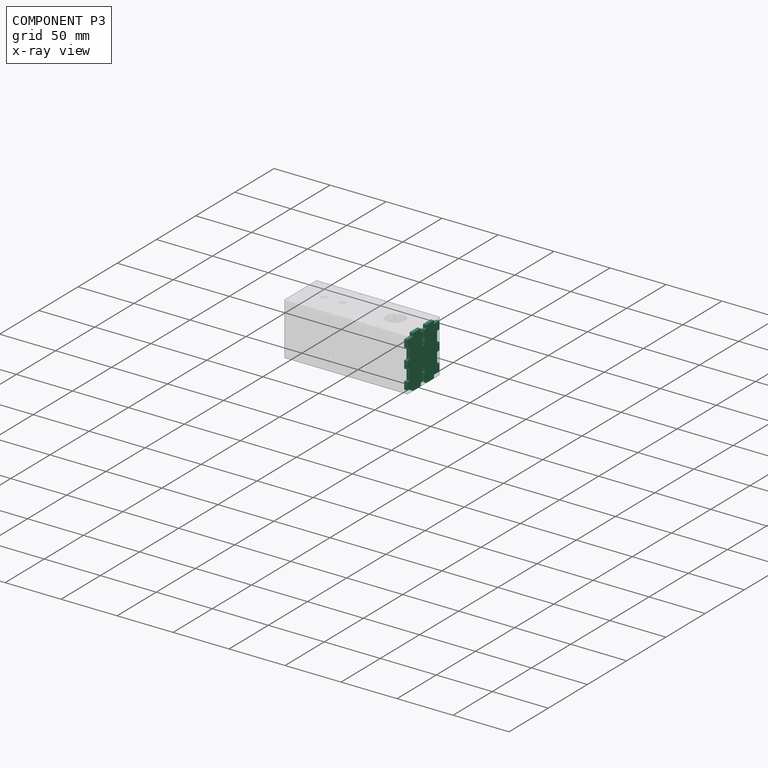
[diagram: component P3 — x-ray view]
COMPONENT P3 — recipe-attached (CADFS 00230034, mesh-verified: the recipe's output STEP matches this component's geometry to below the mesh-comparison resolution (tessellation chordal tolerance ~0.0937 mm)).
Held by: FASTENED mate "Fastened 4" to P0.
Construction recipe (FeatureScript — the CAD program that rebuilds this solid; sketch coordinates are in the units given by the * unit suffixes, e.g. mm):

FeatureScript 1511;
import(path : "onshape/std/geometry.fs", version : "1511.0");
import(path : "onshape/std/common.fs", version : "1511.0");
const mm = millimeter;
const VERTEX = EntityType.VERTEX;
const EDGE = EntityType.EDGE;
const FACE = EntityType.FACE;
const BODY = EntityType.BODY;
function v(x, y){return vector(x, y);}
function OD(order){return orderDisambiguation(order);}
function OSD(set){return originalSetDisambiguation(set);}
function TD(topology){return topologyDisambiguation(topology);}
function TDD(query){return trueDependencyDisambiguation(query);}
function sQuery(a, b, c) {return sketchEntityQuery(a, b, c);}

annotation { "Feature Type Name" : "Feature", "Feature Type Description" : "" }
export const myFeature = defineFeature(function(context is Context, id is Id, definition is map)
    precondition{}
    {
        {
            var Q0;
            Q0=qCreatedBy(makeId("Front.planeOp"),FACE);
            var sketch = newSketch(context, id + "F0", { "sketchPlane" : qUnion([Q0])});
            skLineSegment(sketch, "E0", {"start": v(-48.37, 17.06) * mm, "end": v(-48.37, 20.56) * mm});
            skLineSegment(sketch, "E1", {"start": v(-48.37, 20.56) * mm, "end": v(-47.37, 20.56) * mm});
            skLineSegment(sketch, "E2", {"start": v(-47.37, 20.56) * mm, "end": v(-47.37, 22.56) * mm});
            skLineSegment(sketch, "E3", {"start": v(-47.37, 22.56) * mm, "end": v(-48.37, 22.56) * mm});
            skLineSegment(sketch, "E4", {"start": v(-48.37, 22.56) * mm, "end": v(-48.37, 29.06) * mm});
            skLineSegment(sketch, "E5", {"start": v(-48.37, 29.06) * mm, "end": v(-45.87, 29.06) * mm});
            skLineSegment(sketch, "E6", {"start": v(-45.87, 29.06) * mm, "end": v(-45.87, 32.06) * mm});
            skLineSegment(sketch, "E7", {"start": v(-45.87, 32.06) * mm, "end": v(-35.87, 32.06) * mm});
            skLineSegment(sketch, "E8", {"start": v(-35.87, 32.06) * mm, "end": v(-35.87, 29.06) * mm});
            skLineSegment(sketch, "E9", {"start": v(-35.87, 29.06) * mm, "end": v(-28.87, 29.06) * mm});
            skPoint(sketch, "E10.end.orphan", {"position": v(-52.03, 29.06) * mm});
            skPoint(sketch, "E11.start.orphan", {"position": v(-49.53, 29.06) * mm});
            skLineSegment(sketch, "E12", {"start": v(-48.37, 17.06) * mm, "end": v(-49.37, 17.06) * mm});
            skLineSegment(sketch, "E13", {"start": v(-28.87, 29.06) * mm, "end": v(-28.87, 22.06) * mm});
            skLineSegment(sketch, "E14", {"start": v(-28.87, 22.06) * mm, "end": v(-31.87, 22.06) * mm});
            skLineSegment(sketch, "E15", {"start": v(-31.87, 22.06) * mm, "end": v(-31.87, 12.06) * mm});
            skLineSegment(sketch, "E16", {"start": v(-31.87, 12.06) * mm, "end": v(-28.87, 12.06) * mm});
            skLineSegment(sketch, "E17", {"start": v(-28.87, 12.06) * mm, "end": v(-28.87, 8.56) * mm});
            skLineSegment(sketch, "E18", {"start": v(-45.87, 32.06) * mm, "end": v(-49.37, 32.06) * mm, "construction": true});
            skLineSegment(sketch, "E19", {"start": v(-49.37, 32.06) * mm, "end": v(-49.37, 8.56) * mm, "construction": true});
            skLineSegment(sketch, "E20.MirrorCS", {"start": v(-50.37, 20.56) * mm, "end": v(-51.37, 20.56) * mm});
            skLineSegment(sketch, "E21.MirrorCS", {"start": v(-66.87, 12.06) * mm, "end": v(-69.87, 12.06) * mm});
            skLineSegment(sketch, "E22.MirrorCS", {"start": v(-51.37, 20.56) * mm, "end": v(-51.37, 22.56) * mm});
            skLineSegment(sketch, "E23.MirrorCS", {"start": v(-51.37, 22.56) * mm, "end": v(-50.37, 22.56) * mm});
            skLineSegment(sketch, "E24.MirrorCS", {"start": v(-50.37, 17.06) * mm, "end": v(-49.37, 17.06) * mm});
            skLineSegment(sketch, "E25.MirrorCS", {"start": v(-69.87, 22.06) * mm, "end": v(-66.87, 22.06) * mm});
            skLineSegment(sketch, "E26.MirrorCS", {"start": v(-52.87, 29.06) * mm, "end": v(-52.87, 32.06) * mm});
            skLineSegment(sketch, "E27.MirrorCS", {"start": v(-62.87, 32.06) * mm, "end": v(-62.87, 29.06) * mm});
            skLineSegment(sketch, "E28.MirrorCS", {"start": v(-50.37, 29.06) * mm, "end": v(-52.87, 29.06) * mm});
            skLineSegment(sketch, "E29.MirrorCS", {"start": v(-50.37, 17.06) * mm, "end": v(-50.37, 20.56) * mm});
            skLineSegment(sketch, "E30.MirrorCS", {"start": v(-52.87, 32.06) * mm, "end": v(-49.37, 32.06) * mm, "construction": true});
            skLineSegment(sketch, "E31.MirrorCS", {"start": v(-50.37, 22.56) * mm, "end": v(-50.37, 29.06) * mm});
            skPoint(sketch, "E32.MirrorP", {"position": v(-49.21, 29.06) * mm});
            skLineSegment(sketch, "E33.MirrorCS", {"start": v(-69.87, 29.06) * mm, "end": v(-69.87, 22.06) * mm});
            skLineSegment(sketch, "E34.MirrorCS", {"start": v(-69.87, 12.06) * mm, "end": v(-69.87, 8.56) * mm});
            skLineSegment(sketch, "E35.MirrorCS", {"start": v(-62.87, 29.06) * mm, "end": v(-69.87, 29.06) * mm});
            skLineSegment(sketch, "E36.MirrorCS", {"start": v(-66.87, 22.06) * mm, "end": v(-66.87, 12.06) * mm});
            skLineSegment(sketch, "E37.MirrorCS", {"start": v(-52.87, 32.06) * mm, "end": v(-62.87, 32.06) * mm});
            skPoint(sketch, "E38.MirrorP", {"position": v(-46.71, 29.06) * mm});
            skLineSegment(sketch, "E39", {"start": v(-69.87, 8.56) * mm, "end": v(-28.87, 8.56) * mm, "construction": true});
            skLineSegment(sketch, "E40.MirrorCS", {"start": v(-48.37, -3.44) * mm, "end": v(-47.37, -3.44) * mm});
            skLineSegment(sketch, "E41.MirrorCS", {"start": v(-47.37, -3.44) * mm, "end": v(-47.37, -5.44) * mm});
            skLineSegment(sketch, "E42.MirrorCS", {"start": v(-52.87, -14.94) * mm, "end": v(-49.37, -14.94) * mm, "construction": true});
            skLineSegment(sketch, "E43.MirrorCS", {"start": v(-51.37, -5.44) * mm, "end": v(-50.37, -5.44) * mm});
            skLineSegment(sketch, "E44.MirrorCS", {"start": v(-48.37, 0.06) * mm, "end": v(-48.37, -3.44) * mm});
            skLineSegment(sketch, "E45.MirrorCS", {"start": v(-45.87, -14.94) * mm, "end": v(-49.37, -14.94) * mm, "construction": true});
            skLineSegment(sketch, "E46.MirrorCS", {"start": v(-50.37, -3.44) * mm, "end": v(-51.37, -3.44) * mm});
            skLineSegment(sketch, "E47.MirrorCS", {"start": v(-51.37, -3.44) * mm, "end": v(-51.37, -5.44) * mm});
            skLineSegment(sketch, "E48.MirrorCS", {"start": v(-50.37, 0.06) * mm, "end": v(-49.37, 0.06) * mm});
            skLineSegment(sketch, "E49.MirrorCS", {"start": v(-48.37, 0.06) * mm, "end": v(-49.37, 0.06) * mm});
            skLineSegment(sketch, "E50.MirrorCS", {"start": v(-50.37, 0.06) * mm, "end": v(-50.37, -3.44) * mm});
            skLineSegment(sketch, "E51.MirrorCS", {"start": v(-50.37, -11.94) * mm, "end": v(-52.87, -11.94) * mm});
            skLineSegment(sketch, "E52.MirrorCS", {"start": v(-52.87, -11.94) * mm, "end": v(-52.87, -14.94) * mm});
            skLineSegment(sketch, "E53.MirrorCS", {"start": v(-66.87, 5.06) * mm, "end": v(-69.87, 5.06) * mm});
            skLineSegment(sketch, "E54.MirrorCS", {"start": v(-31.87, 5.06) * mm, "end": v(-28.87, 5.06) * mm});
            skLineSegment(sketch, "E55.MirrorCS", {"start": v(-28.87, 5.06) * mm, "end": v(-28.87, 8.56) * mm});
            skLineSegment(sketch, "E56.MirrorCS", {"start": v(-45.87, -11.94) * mm, "end": v(-45.87, -14.94) * mm});
            skLineSegment(sketch, "E57.MirrorCS", {"start": v(-47.37, -5.44) * mm, "end": v(-48.37, -5.44) * mm});
            skLineSegment(sketch, "E58.MirrorCS", {"start": v(-35.87, -14.94) * mm, "end": v(-35.87, -11.94) * mm});
            skLineSegment(sketch, "E59.MirrorCS", {"start": v(-69.87, -4.94) * mm, "end": v(-66.87, -4.94) * mm});
            skLineSegment(sketch, "E60.MirrorCS", {"start": v(-62.87, -14.94) * mm, "end": v(-62.87, -11.94) * mm});
            skLineSegment(sketch, "E61.MirrorCS", {"start": v(-28.87, -4.94) * mm, "end": v(-31.87, -4.94) * mm});
            skLineSegment(sketch, "E62.MirrorCS", {"start": v(-69.87, 5.06) * mm, "end": v(-69.87, 8.56) * mm});
            skLineSegment(sketch, "E63.MirrorCS", {"start": v(-48.37, -11.94) * mm, "end": v(-45.87, -11.94) * mm});
            skPoint(sketch, "E64.MirrorP", {"position": v(-49.21, -11.94) * mm});
            skLineSegment(sketch, "E65.MirrorCS", {"start": v(-48.37, -5.44) * mm, "end": v(-48.37, -11.94) * mm});
            skLineSegment(sketch, "E66.MirrorCS", {"start": v(-50.37, -5.44) * mm, "end": v(-50.37, -11.94) * mm});
            skLineSegment(sketch, "E67.MirrorCS", {"start": v(-62.87, -11.94) * mm, "end": v(-69.87, -11.94) * mm});
            skLineSegment(sketch, "E68.MirrorCS", {"start": v(-69.87, -11.94) * mm, "end": v(-69.87, -4.94) * mm});
            skLineSegment(sketch, "E69.MirrorCS", {"start": v(-49.37, -14.94) * mm, "end": v(-49.37, 8.56) * mm, "construction": true});
            skLineSegment(sketch, "E70.MirrorCS", {"start": v(-31.87, -4.94) * mm, "end": v(-31.87, 5.06) * mm});
            skPoint(sketch, "E71.MirrorP", {"position": v(-52.03, -11.94) * mm});
            skLineSegment(sketch, "E72.MirrorCS", {"start": v(-66.87, -4.94) * mm, "end": v(-66.87, 5.06) * mm});
            skLineSegment(sketch, "E73.MirrorCS", {"start": v(-45.87, -14.94) * mm, "end": v(-35.87, -14.94) * mm});
            skPoint(sketch, "E74.MirrorP", {"position": v(-49.53, -11.94) * mm});
            skLineSegment(sketch, "E75.MirrorCS", {"start": v(-35.87, -11.94) * mm, "end": v(-28.87, -11.94) * mm});
            skPoint(sketch, "E76.MirrorP", {"position": v(-46.71, -11.94) * mm});
            skLineSegment(sketch, "E77.MirrorCS", {"start": v(-52.87, -14.94) * mm, "end": v(-62.87, -14.94) * mm});
            skLineSegment(sketch, "E78.MirrorCS", {"start": v(-28.87, -11.94) * mm, "end": v(-28.87, -4.94) * mm});
            skSolve(sketch);
        }
        {
            var Q0;
            Q0 = qSketchRegion(id + "F0", true);
            extrude(context, id + "F1", {"entities" : qUnion([Q0]), "depth" : 3 * mm});
        }
    });
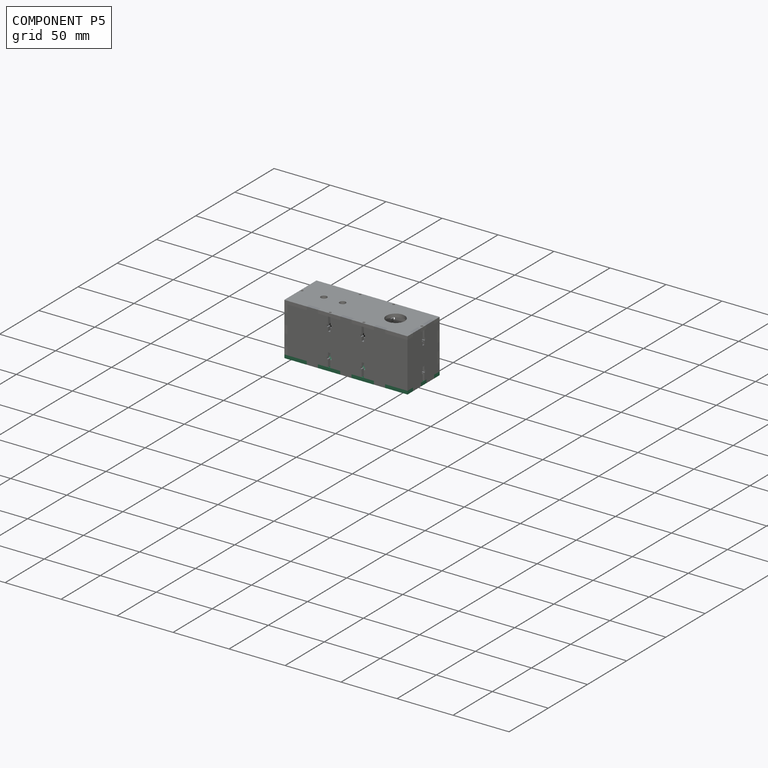
[diagram: component P5 — assembled]
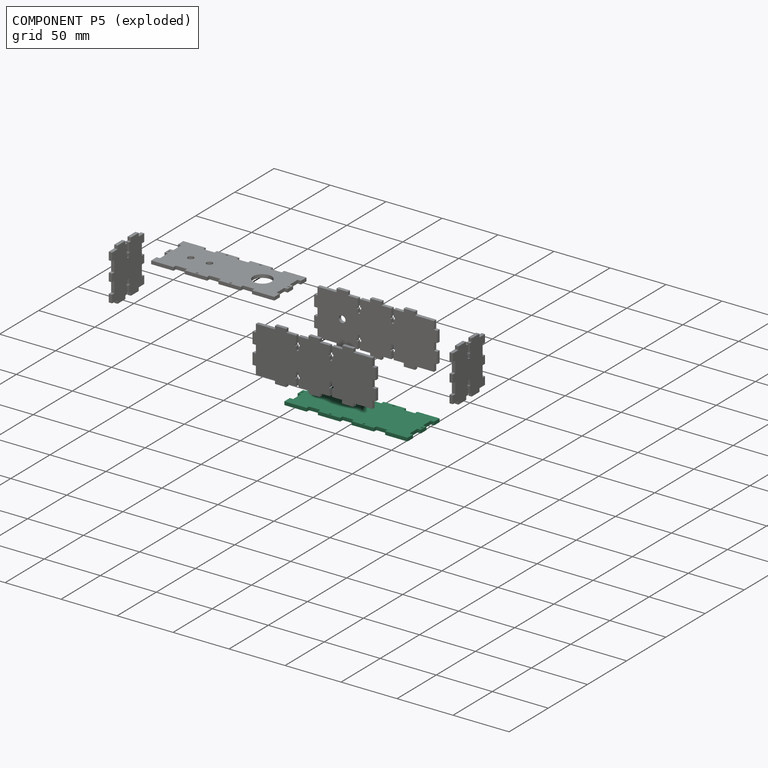
[diagram: component P5 — exploded]
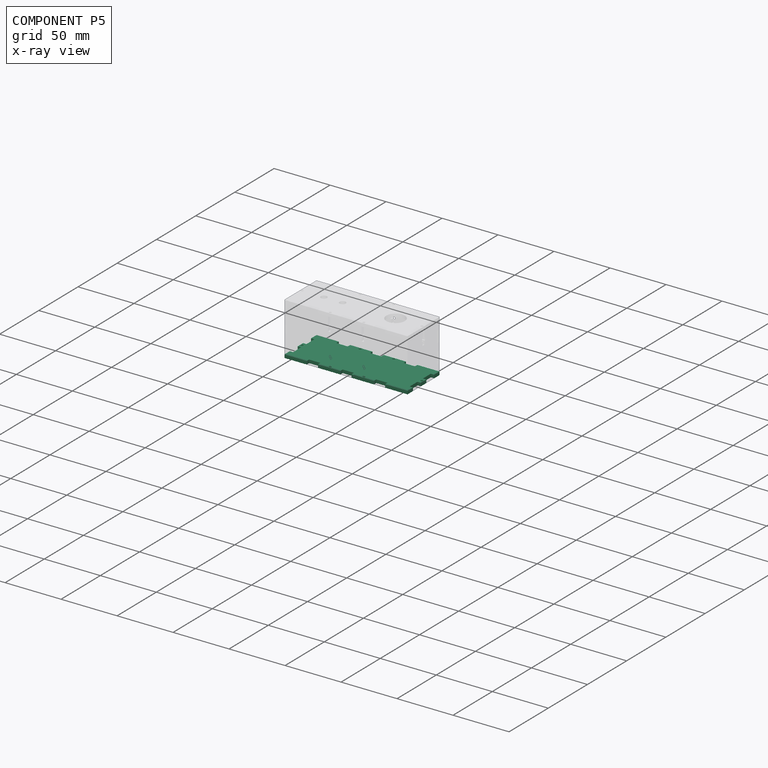
[diagram: component P5 — x-ray view]
COMPONENT P5 — recipe-attached (CADFS 00230033, mesh-verified: the recipe's output STEP matches this component's geometry to below the mesh-comparison resolution (tessellation chordal tolerance ~0.176 mm)).
Held by: FASTENED mate "Fastened 3" to P1; FASTENED mate "Fastened 1" to P5.
Construction recipe (FeatureScript — the CAD program that rebuilds this solid; sketch coordinates are in the units given by the * unit suffixes, e.g. mm):

FeatureScript 1511;
import(path : "onshape/std/geometry.fs", version : "1511.0");
import(path : "onshape/std/common.fs", version : "1511.0");
const mm = millimeter;
const VERTEX = EntityType.VERTEX;
const EDGE = EntityType.EDGE;
const FACE = EntityType.FACE;
const BODY = EntityType.BODY;
function v(x, y){return vector(x, y);}
function OD(order){return orderDisambiguation(order);}
function OSD(set){return originalSetDisambiguation(set);}
function TD(topology){return topologyDisambiguation(topology);}
function TDD(query){return trueDependencyDisambiguation(query);}
function sQuery(a, b, c) {return sketchEntityQuery(a, b, c);}

annotation { "Feature Type Name" : "Feature", "Feature Type Description" : "" }
export const myFeature = defineFeature(function(context is Context, id is Id, definition is map)
    precondition{}
    {
        {
            var Q0;
            Q0=qCreatedBy(makeId("Top.planeOp"),FACE);
            var sketch = newSketch(context, id + "F0", { "sketchPlane" : qUnion([Q0])});
            skLineSegment(sketch, "E0", {"start": v(-55, 21.1) * mm, "end": v(-55, 14.1) * mm});
            skLineSegment(sketch, "E1", {"start": v(-55, 14.1) * mm, "end": v(-52, 14.1) * mm});
            skLineSegment(sketch, "E2", {"start": v(-52, 14.1) * mm, "end": v(-52, 4.1) * mm});
            skLineSegment(sketch, "E3", {"start": v(-52, 4.1) * mm, "end": v(-55, 4.1) * mm});
            skLineSegment(sketch, "E4", {"start": v(-55, 4.1) * mm, "end": v(-55, 0.6) * mm});
            skLineSegment(sketch, "E5", {"start": v(-55, 21.1) * mm, "end": v(-35, 21.1) * mm});
            skLineSegment(sketch, "E6", {"start": v(-35, 21.1) * mm, "end": v(-35, 18.1) * mm});
            skLineSegment(sketch, "E7", {"start": v(-35, 18.1) * mm, "end": v(-25, 18.1) * mm});
            skLineSegment(sketch, "E8", {"start": v(-25, 18.1) * mm, "end": v(-25, 21.1) * mm});
            skLineSegment(sketch, "E9", {"start": v(-25, 21.1) * mm, "end": v(-5, 21.1) * mm});
            skLineSegment(sketch, "E10", {"start": v(-5, 21.1) * mm, "end": v(-5, 18.1) * mm});
            skLineSegment(sketch, "E11", {"start": v(-5, 18.1) * mm, "end": v(0, 18.1) * mm});
            skLineSegment(sketch, "E12", {"start": v(-55, 0.6) * mm, "end": v(0, 0.6) * mm, "construction": true});
            skLineSegment(sketch, "E13.MirrorCS", {"start": v(-55, -12.9) * mm, "end": v(-52, -12.9) * mm});
            skLineSegment(sketch, "E14.MirrorCS", {"start": v(-25, -16.9) * mm, "end": v(-25, -19.9) * mm});
            skLineSegment(sketch, "E15.MirrorCS", {"start": v(-52, -2.9) * mm, "end": v(-55, -2.9) * mm});
            skLineSegment(sketch, "E16.MirrorCS", {"start": v(-55, -2.9) * mm, "end": v(-55, 0.6) * mm});
            skLineSegment(sketch, "E17.MirrorCS", {"start": v(-35, -19.9) * mm, "end": v(-35, -16.9) * mm});
            skLineSegment(sketch, "E18.MirrorCS", {"start": v(-5, -19.9) * mm, "end": v(-5, -16.9) * mm});
            skLineSegment(sketch, "E19.MirrorCS", {"start": v(-55, -19.9) * mm, "end": v(-55, -12.9) * mm});
            skLineSegment(sketch, "E20.MirrorCS", {"start": v(-5, -16.9) * mm, "end": v(0, -16.9) * mm});
            skLineSegment(sketch, "E21.MirrorCS", {"start": v(-52, -12.9) * mm, "end": v(-52, -2.9) * mm});
            skLineSegment(sketch, "E22.MirrorCS", {"start": v(-25, -19.9) * mm, "end": v(-5, -19.9) * mm});
            skLineSegment(sketch, "E23.MirrorCS", {"start": v(-55, -19.9) * mm, "end": v(-35, -19.9) * mm});
            skLineSegment(sketch, "E24.MirrorCS", {"start": v(-35, -16.9) * mm, "end": v(-25, -16.9) * mm});
            skLineSegment(sketch, "E25", {"start": v(0, 18.1) * mm, "end": v(0, -16.9) * mm, "construction": true});
            skLineSegment(sketch, "E26.MirrorCS", {"start": v(55, -2.9) * mm, "end": v(55, 0.6) * mm});
            skLineSegment(sketch, "E27.MirrorCS", {"start": v(5, 21.1) * mm, "end": v(5, 18.1) * mm});
            skLineSegment(sketch, "E28.MirrorCS", {"start": v(25, 18.1) * mm, "end": v(25, 21.1) * mm});
            skLineSegment(sketch, "E29.MirrorCS", {"start": v(35, 21.1) * mm, "end": v(35, 18.1) * mm});
            skLineSegment(sketch, "E30.MirrorCS", {"start": v(55, 4.1) * mm, "end": v(55, 0.6) * mm});
            skLineSegment(sketch, "E31.MirrorCS", {"start": v(52, 4.1) * mm, "end": v(55, 4.1) * mm});
            skLineSegment(sketch, "E32.MirrorCS", {"start": v(55, 14.1) * mm, "end": v(52, 14.1) * mm});
            skLineSegment(sketch, "E33.MirrorCS", {"start": v(25, -16.9) * mm, "end": v(25, -19.9) * mm});
            skLineSegment(sketch, "E34.MirrorCS", {"start": v(52, -2.9) * mm, "end": v(55, -2.9) * mm});
            skLineSegment(sketch, "E35.MirrorCS", {"start": v(5, -19.9) * mm, "end": v(5, -16.9) * mm});
            skLineSegment(sketch, "E36.MirrorCS", {"start": v(55, -12.9) * mm, "end": v(52, -12.9) * mm});
            skLineSegment(sketch, "E37.MirrorCS", {"start": v(35, -19.9) * mm, "end": v(35, -16.9) * mm});
            skLineSegment(sketch, "E38.MirrorCS", {"start": v(5, -16.9) * mm, "end": v(0, -16.9) * mm});
            skLineSegment(sketch, "E39.MirrorCS", {"start": v(55, -19.9) * mm, "end": v(35, -19.9) * mm});
            skLineSegment(sketch, "E40.MirrorCS", {"start": v(25, -19.9) * mm, "end": v(5, -19.9) * mm});
            skLineSegment(sketch, "E41.MirrorCS", {"start": v(55, 0.6) * mm, "end": v(0, 0.6) * mm, "construction": true});
            skLineSegment(sketch, "E42.MirrorCS", {"start": v(5, 18.1) * mm, "end": v(0, 18.1) * mm});
            skLineSegment(sketch, "E43.MirrorCS", {"start": v(25, 21.1) * mm, "end": v(5, 21.1) * mm});
            skLineSegment(sketch, "E44.MirrorCS", {"start": v(35, 18.1) * mm, "end": v(25, 18.1) * mm});
            skLineSegment(sketch, "E45.MirrorCS", {"start": v(55, 21.1) * mm, "end": v(35, 21.1) * mm});
            skLineSegment(sketch, "E46.MirrorCS", {"start": v(52, 14.1) * mm, "end": v(52, 4.1) * mm});
            skLineSegment(sketch, "E47.MirrorCS", {"start": v(55, 21.1) * mm, "end": v(55, 14.1) * mm});
            skLineSegment(sketch, "E48.MirrorCS", {"start": v(55, -19.9) * mm, "end": v(55, -12.9) * mm});
            skLineSegment(sketch, "E49.MirrorCS", {"start": v(52, -12.9) * mm, "end": v(52, -2.9) * mm});
            skLineSegment(sketch, "E50.MirrorCS", {"start": v(35, -16.9) * mm, "end": v(25, -16.9) * mm});
            skCircle(sketch, "E51", {"center": v(-15, 19.6) * mm, "radius": 1 * mm});
            skPoint(sketch, "E51.centerSnap0", {"position": v(-15, 21.1) * mm});
            skCircle(sketch, "E52.MirrorC", {"center": v(-15, -18.4) * mm, "radius": 1 * mm});
            skCircle(sketch, "E53", {"center": v(-53.5, 0.6) * mm, "radius": 1 * mm});
            skCircle(sketch, "E54.MirrorC", {"center": v(15, 19.6) * mm, "radius": 1 * mm});
            skCircle(sketch, "E55.MirrorC", {"center": v(15, -18.4) * mm, "radius": 1 * mm});
            skCircle(sketch, "E56.MirrorC", {"center": v(53.5, 0.6) * mm, "radius": 1 * mm});
            skSolve(sketch);
        }
        {
            var Q0;
            Q0 = qSketchRegion(id + "F0", true);
            extrude(context, id + "F1", {"entities" : qUnion([Q0]), "depth" : 3 * mm});
        }
    });
PROVENANCE & LICENSES
Assembly (occurrences, transforms, mates, per-part STEP geometry): AutoMate dataset, Zenodo record 7776208, CC0.
Construction recipes: CADFS (HuggingFace VladPyatov/CADFS, CC-BY-4.0, layered over the ABC dataset), FeatureScript reconstruction programs keyed by ABC model id.
Join: ABC meta listings map ABC model id -> Onshape documentId; within a shared document, parts are matched by geometric signature (bounding-box dims + volume at 0.1% relative tolerance, exact B-rep face/solid counts).
Verification: 6 of this assembly's 6 components carry a recipe attachment, and every attachment is mesh-verified: the CADFS STEP and the AutoMate member STEP were compared as meshes in their shared local frame (symmetric sampled-point-to-mesh distance); worst across the 6 attachments: below the mesh-comparison resolution (tessellation chordal tolerance ~0.179 mm) on a 120 mm part.
Renders: orthographic iso camera (az 35 / el 25); the floor grid conveys scale (grid pitch printed in each image; no ruler). In the exploded view each component is displaced by its stored offset vector: the offsets alone carry the explosion direction (mate normal/axis signs are not orientation cues and do not encode it), and separation distances are assigned per mate-chain, not proportionally to assembly-order depth.
